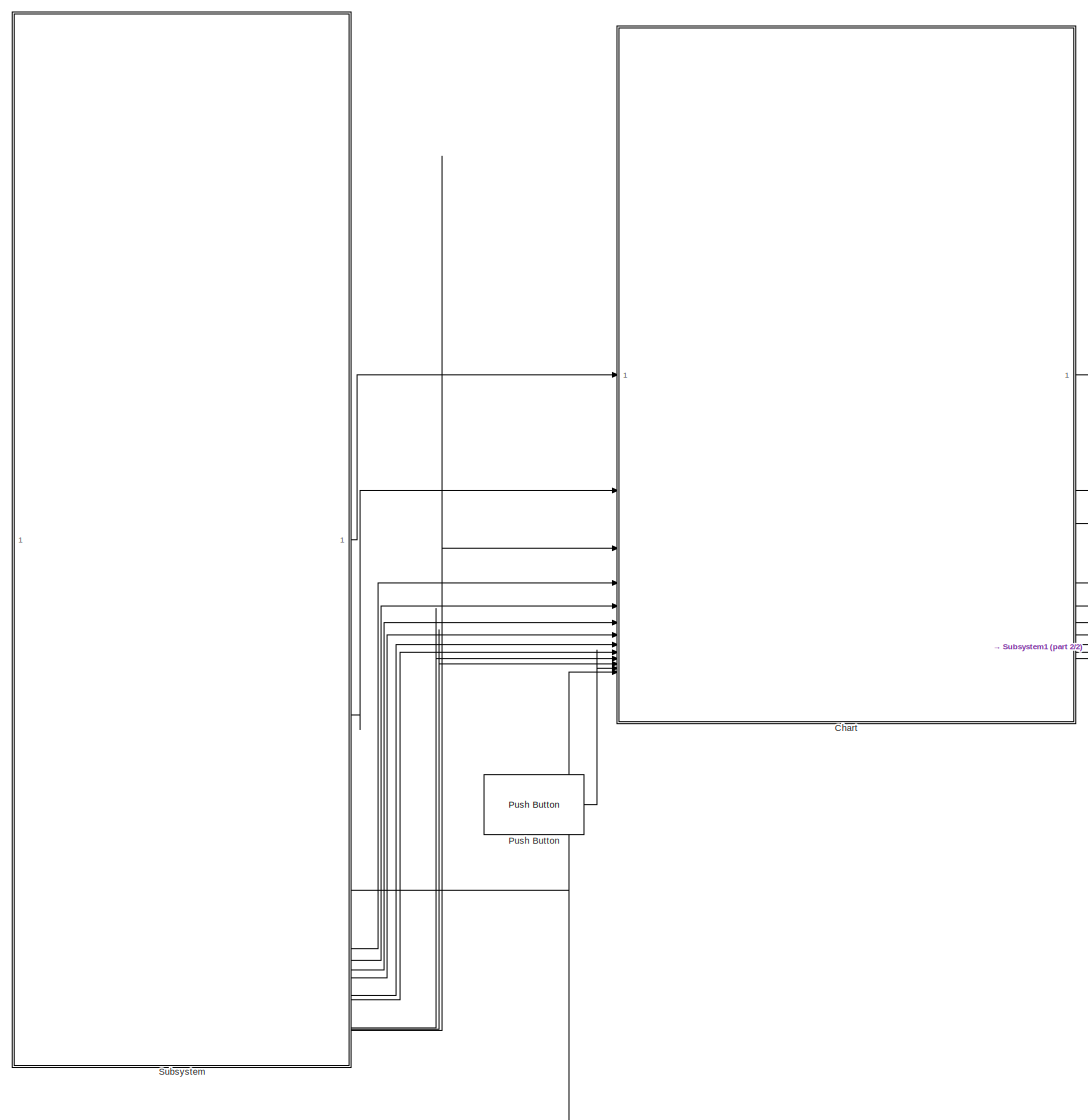
[diagram: root canvas - part 1/2, center side, full height]
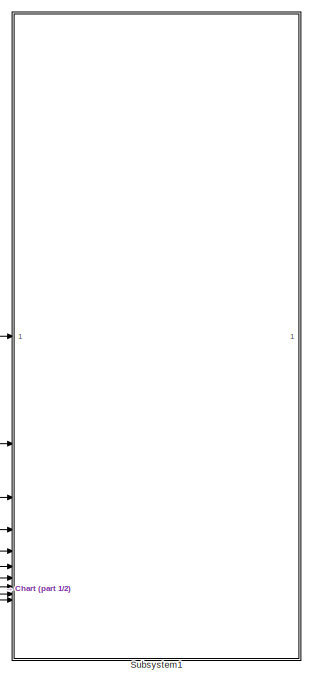
[diagram: root canvas - part 2/2, top right region]
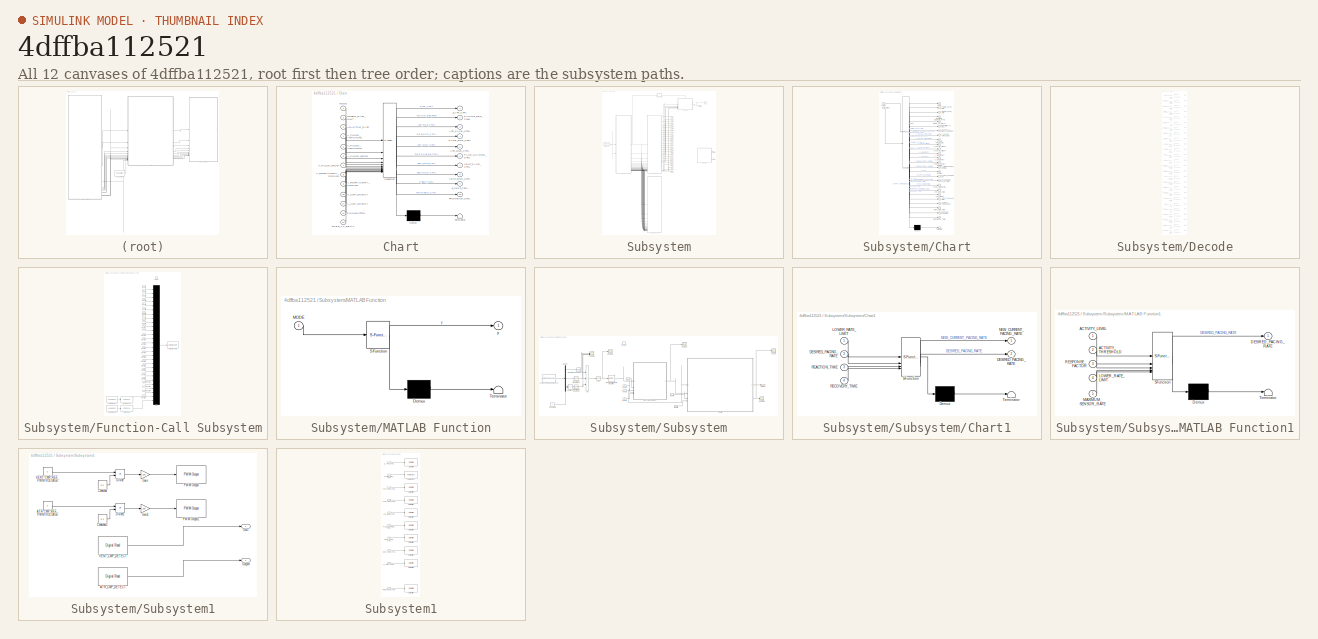
[diagram: thumbnail index - all 12 canvases of the model, root first then tree order]
MODEL slx_4dffba112521
KIND model
CONFIG AbsTol = auto
CONFIG EnableMultiTasking = on
CONFIG FixedStep = 1e-3
CONFIG MaxStep = auto
CONFIG MinStep = auto
CONFIG RelTol = 1e-3
CONFIG SampleTimeConstraint = Unconstrained
CONFIG SolverName = FixedStepAuto
CONFIG StartTime = 0.0
CONFIG StopTime = 10.0
BLOCK [SubSystem] Chart
  ErrorFcn = Stateflow.Translate.translate
  PermitHierarchicalResolution = ExplicitOnly
  SFBlockType = Chart
  TreatAsAtomicUnit = on
BLOCK [Demux] Chart/ Demux 
  Outputs = 1
BLOCK [S-Function] Chart/ SFunction 
  EnableBusSupport = off
  FunctionName = sf_sfun
  PortCounts = [13 11]
  SFcnIsStateOwnerBlock = off
  SFunctionDeploymentMode = off
  Tag = Stateflow S-Function 3
BLOCK [Terminator] Chart/ Terminator 
BLOCK [Inport] Chart/ADAPTIVE_RATE
  Port = 3
BLOCK [Outport] Chart/ATR_GND_CTRL
  Port = 5
BLOCK [Outport] Chart/ATR_PACE_CTRL
  Port = 3
BLOCK [Inport] Chart/A_CMP_DETECT
  Port = 11
BLOCK [Inport] Chart/A_PULSE_AMPLITUDE
  Port = 4
BLOCK [Inport] Chart/A_PULSE_WIDTH
  Port = 6
BLOCK [Inport] Chart/A_REFRACTORY_PERIOD
  Port = 9
BLOCK [Inport] Chart/FIXED_AV_DELAY
  Port = 13
BLOCK [Outport] Chart/FRONTEND_CTRL
  Port = 10
BLOCK [Inport] Chart/LOWER_RATE_LIMIT
  Port = 2
BLOCK [Inport] Chart/MODE
BLOCK [Outport] Chart/PACE_CHARGE_CTRL
  Port = 6
BLOCK [Outport] Chart/PACE_GND_CTRL
  Port = 4
BLOCK [Outport] Chart/PACING_REF_PWM
  Port = 2
BLOCK [Inport] Chart/PUSHBUTTON
  Port = 12
BLOCK [Outport] Chart/VENT_GND_CTRL
  Port = 8
BLOCK [Outport] Chart/VENT_PACE_CTRL
  Port = 7
BLOCK [Inport] Chart/V_CMP_DETECT
  Port = 10
BLOCK [Inport] Chart/V_PULSE_AMPLITUDE
  Port = 5
BLOCK [Inport] Chart/V_PULSE_WIDTH
  Port = 7
BLOCK [Inport] Chart/V_REFRACTORY_PERIOD
  Port = 8
BLOCK [Outport] Chart/Z_ATR_CTRL
BLOCK [Outport] Chart/Z_VENT_CTRL
  Port = 9
BLOCK [Reference] Push Button  REF=frdmk64flib/Push Button
  SourceBlock = frdmk64flib/Push Button
  SourceType = freedomk64f.PushButton
BLOCK [SubSystem] Subsystem
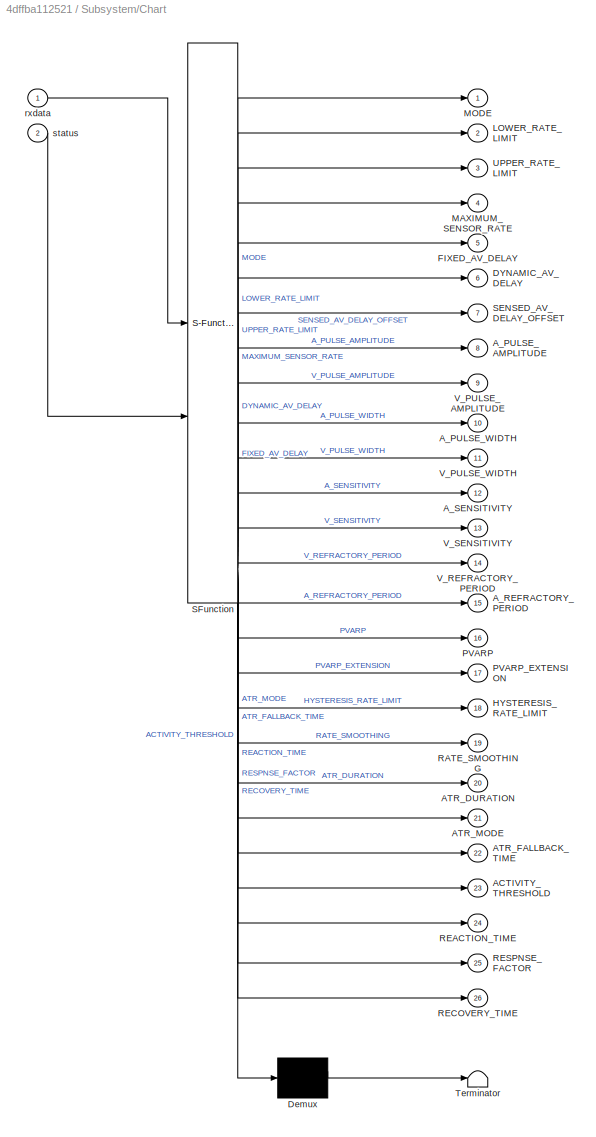
BLOCK [SubSystem] Subsystem/Chart
  ErrorFcn = Stateflow.Translate.translate
  PermitHierarchicalResolution = ExplicitOnly
  SFBlockType = Chart
  TreatAsAtomicUnit = on
BLOCK [Demux] Subsystem/Chart/ Demux 
  Outputs = 1
BLOCK [S-Function] Subsystem/Chart/ SFunction 
  EnableBusSupport = off
  FunctionName = sf_sfun
  PortCounts = [2 27]
  SFcnIsStateOwnerBlock = off
  SFunctionDeploymentMode = off
  Tag = Stateflow S-Function 1
BLOCK [Terminator] Subsystem/Chart/ Terminator 
BLOCK [Outport] Subsystem/Chart/ACTIVITY_THRESHOLD
  Port = 23
BLOCK [Outport] Subsystem/Chart/ATR_DURATION
  Port = 20
BLOCK [Outport] Subsystem/Chart/ATR_FALLBACK_TIME
  Port = 22
BLOCK [Outport] Subsystem/Chart/ATR_MODE
  Port = 21
BLOCK [Outport] Subsystem/Chart/A_PULSE_AMPLITUDE
  Port = 8
BLOCK [Outport] Subsystem/Chart/A_PULSE_WIDTH
  Port = 10
BLOCK [Outport] Subsystem/Chart/A_REFRACTORY_PERIOD
  Port = 15
BLOCK [Outport] Subsystem/Chart/A_SENSITIVITY
  Port = 12
BLOCK [Outport] Subsystem/Chart/DYNAMIC_AV_DELAY
  Port = 6
BLOCK [Outport] Subsystem/Chart/FIXED_AV_DELAY
  Port = 5
BLOCK [Outport] Subsystem/Chart/HYSTERESIS_RATE_LIMIT
  Port = 18
BLOCK [Outport] Subsystem/Chart/LOWER_RATE_LIMIT
  Port = 2
BLOCK [Outport] Subsystem/Chart/MAXIMUM_SENSOR_RATE
  Port = 4
BLOCK [Outport] Subsystem/Chart/MODE
BLOCK [Outport] Subsystem/Chart/PVARP
  Port = 16
BLOCK [Outport] Subsystem/Chart/PVARP_EXTENSION
  Port = 17
BLOCK [Outport] Subsystem/Chart/RATE_SMOOTHING
  Port = 19
BLOCK [Outport] Subsystem/Chart/REACTION_TIME
  Port = 24
BLOCK [Outport] Subsystem/Chart/RECOVERY_TIME
  Port = 26
BLOCK [Outport] Subsystem/Chart/RESPNSE_FACTOR
  Port = 25
BLOCK [Outport] Subsystem/Chart/SENSED_AV_DELAY_OFFSET
  Port = 7
BLOCK [Outport] Subsystem/Chart/UPPER_RATE_LIMIT
  Port = 3
BLOCK [Outport] Subsystem/Chart/V_PULSE_AMPLITUDE
  Port = 9
BLOCK [Outport] Subsystem/Chart/V_PULSE_WIDTH
  Port = 11
BLOCK [Outport] Subsystem/Chart/V_REFRACTORY_PERIOD
  Port = 14
BLOCK [Outport] Subsystem/Chart/V_SENSITIVITY
  Port = 13
BLOCK [Inport] Subsystem/Chart/rxdata
BLOCK [Inport] Subsystem/Chart/status
  Port = 2
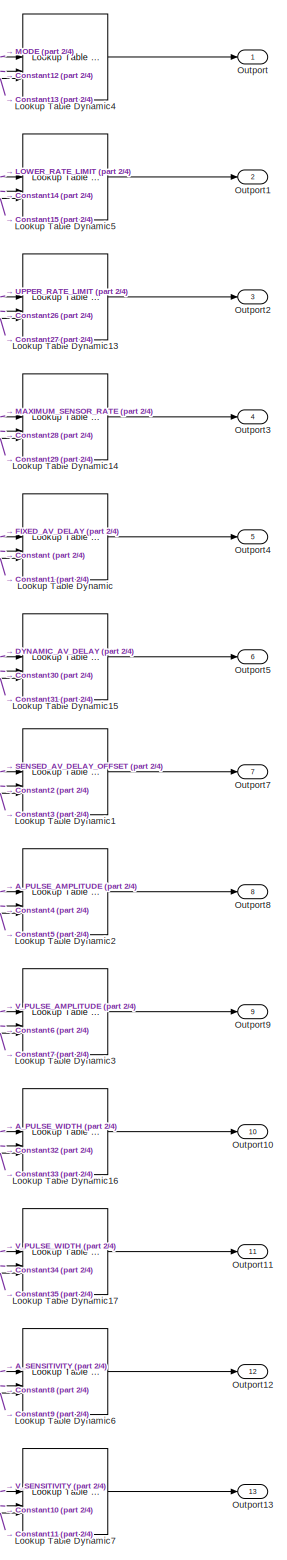
[diagram: Subsystem/Decode - part 1/4, top right region]
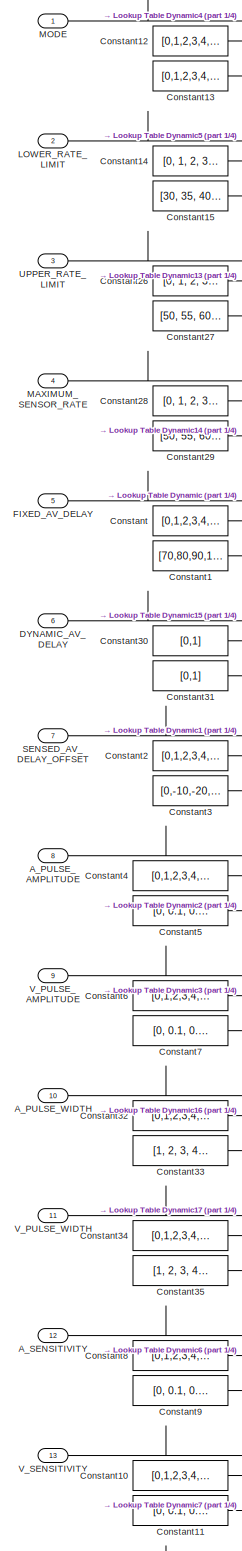
[diagram: Subsystem/Decode - part 2/4, top left region]
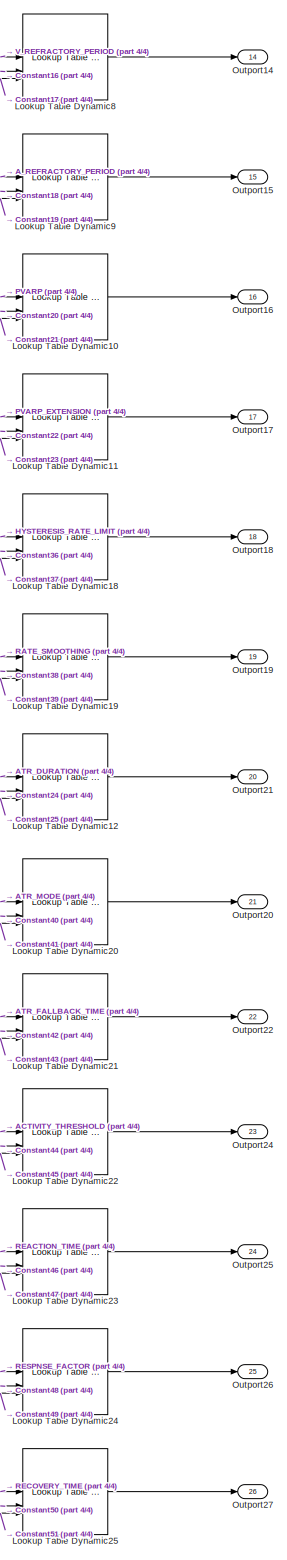
[diagram: Subsystem/Decode - part 3/4, bottom right region]
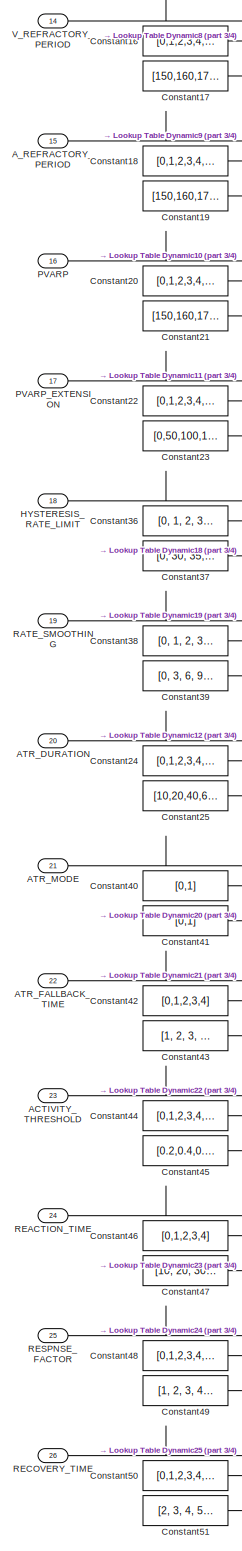
[diagram: Subsystem/Decode - part 4/4, bottom left region]
BLOCK [SubSystem] Subsystem/Decode
BLOCK [Inport] Subsystem/Decode/ACTIVITY_THRESHOLD
  Port = 23
BLOCK [Inport] Subsystem/Decode/ATR_DURATION
  Port = 20
BLOCK [Inport] Subsystem/Decode/ATR_FALLBACK_TIME
  Port = 22
BLOCK [Inport] Subsystem/Decode/ATR_MODE
  Port = 21
BLOCK [Inport] Subsystem/Decode/A_PULSE_AMPLITUDE
  Port = 8
BLOCK [Inport] Subsystem/Decode/A_PULSE_WIDTH
  Port = 10
BLOCK [Inport] Subsystem/Decode/A_REFRACTORY_PERIOD
  Port = 15
BLOCK [Inport] Subsystem/Decode/A_SENSITIVITY
  Port = 12
BLOCK [Constant] Subsystem/Decode/Constant
  Value = [0,1,2,3,4,5,6,7,8,9,10,11,12,13,14,15,16,17,18,19,20,21,22,23]
BLOCK [Constant] Subsystem/Decode/Constant1
  Value = [70,80,90,100,110,120,130,140,150,160,170,180,190,200,210,220,230,240,250,260,270,280,290,300]
BLOCK [Constant] Subsystem/Decode/Constant10
  Value = [0,1,2,3,4,5,6,7,8,9,10,11,12,13,14,15,16,17,18,19,20,21,22,23,24,25,26,27,28,29,30,31,32,33,34,35,36,37,38,39,40,41,42,43,44,45,46,47,48,49,50]
BLOCK [Constant] Subsystem/Decode/Constant11
  Value = [0, 0.1, 0.2, 0.3, 0.4, 0.5, 0.6, 0.7, 0.8, 0.9, 1.0, 1.1, 1.2, 1.3, 1.4, 1.5, 1.6, 1.7, 1.8, 1.9, 2.0, 2.1, 2.2, 2.3, 2.4, 2.5, 2.6, 2.7, 2.8, 2.9, 3.0, 3.1, 3.2, 3.3, 3.4, 3.5, 3.6, 3.7, 3.8, 3.9, 4.0, 4.1, 4.2, 4.3, 4.4, 4.5, 4.6, 4.7, 4.8, 4.9, 5.0]  <repeated x4 — deduplicated; at blocks: Constant11, Constant5, Constant7, Constant9>
BLOCK [Constant] Subsystem/Decode/Constant12
  Value = [0,1,2,3,4,5,6,7,8,9]
BLOCK [Constant] Subsystem/Decode/Constant13
  Value = [0,1,2,3,4,5,6,7,8,9]
BLOCK [Constant] Subsystem/Decode/Constant14
  Value = [0, 1, 2, 3, 4, 5, 6, 7, 8, 9, 10, 11, 12, 13, 14, 15, 16, 17, 18, 19, 20, 21, 22, 23, 24, 25, 26, 27, 28, 29, 30, 31, 32, 33, 34, 35, 36, 37, 38, 39, 40, 41, 42, 43, 44, 45, 46, 47, 48, 49, 50, 51, 52, 53, 54, 55, 56, 57, 58, 59, 60, 61]
BLOCK [Constant] Subsystem/Decode/Constant15
  Value = [30, 35, 40, 45, 50, 51, 52, 53, 54, 55, 56, 57, 58, 59, 60, 61, 62, 63, 64, 65, 66, 67, 68, 69, 70, 71, 72, 73, 74, 75, 76, 77, 78, 79, 80, 81, 82, 83, 84, 85, 86, 87, 88, 89, 90, 95, 100, 105, 110, 115, 120, 125, 130, 135, 140, 145, 150, 155, 160, 165, 170, 175]
BLOCK [Constant] Subsystem/Decode/Constant16
  Value = [0,1,2,3,4,5,6,7,8,9,10,11,12,13,14,15,16,17,18,19,20,21,22,23,24,25,26,27,28,29,30,31,32,33,34,35]
BLOCK [Constant] Subsystem/Decode/Constant17
  Value = [150,160,170,180,190,200,210,220,230,240,250,260,270,280,290,300,310,320,330,340,350,360,370,380,390,400,410,420,430,440,450,460,470,480,490,500]
BLOCK [Constant] Subsystem/Decode/Constant18
  Value = [0,1,2,3,4,5,6,7,8,9,10,11,12,13,14,15,16,17,18,19,20,21,22,23,24,25,26,27,28,29,30,31,32,33,34,35]
BLOCK [Constant] Subsystem/Decode/Constant19
  Value = [150,160,170,180,190,200,210,220,230,240,250,260,270,280,290,300,310,320,330,340,350,360,370,380,390,400,410,420,430,440,450,460,470,480,490,500]
BLOCK [Constant] Subsystem/Decode/Constant2
  Value = [0,1,2,3,4,5,6,7,8,9,10]
BLOCK [Constant] Subsystem/Decode/Constant20
  Value = [0,1,2,3,4,5,6,7,8,9,10,11,12,13,14,15,16,17,18,19,20,21,22,23,24,25,26,27,28,29,30,31,32,33,34,35]
BLOCK [Constant] Subsystem/Decode/Constant21
  Value = [150,160,170,180,190,200,210,220,230,240,250,260,270,280,290,300,310,320,330,340,350,360,370,380,390,400,410,420,430,440,450,460,470,480,490,500]
BLOCK [Constant] Subsystem/Decode/Constant22
  Value = [0,1,2,3,4,5,6,7,8]
BLOCK [Constant] Subsystem/Decode/Constant23
  Value = [0,50,100,150,200,250,300,350,400]
BLOCK [Constant] Subsystem/Decode/Constant24
  Value = [0,1,2,3,4,5,6,7,8,9,10,11,12,13,14,15,16,17,18,19,20,21,22,23,24]
BLOCK [Constant] Subsystem/Decode/Constant25
  Value = [10,20,40,60,80,100,200,300,400,500,600,700,800,900,1000,1100,1200,1300,1400,1500,1600,1700,1800,1900,2000]
BLOCK [Constant] Subsystem/Decode/Constant26
  Value = [0, 1, 2, 3, 4, 5, 6, 7, 8, 9, 10, 11, 12, 13, 14, 15, 16, 17, 18, 19, 20, 21, 22, 23, 24, 25]
BLOCK [Constant] Subsystem/Decode/Constant27
  Value = [50, 55, 60, 65, 70, 75, 80, 85, 90, 95, 100, 105, 110, 115, 120, 125, 130, 135, 140, 145, 150, 155, 160, 165, 170, 175]
BLOCK [Constant] Subsystem/Decode/Constant28
  Value = [0, 1, 2, 3, 4, 5, 6, 7, 8, 9, 10, 11, 12, 13, 14, 15, 16, 17, 18, 19, 20, 21, 22, 23, 24, 25]
BLOCK [Constant] Subsystem/Decode/Constant29
  Value = [50, 55, 60, 65, 70, 75, 80, 85, 90, 95, 100, 105, 110, 115, 120, 125, 130, 135, 140, 145, 150, 155, 160, 165, 170, 175]
BLOCK [Constant] Subsystem/Decode/Constant3
  Value = [0,-10,-20,-30,-40,-50,-60,-70,-80,-90,-100]
BLOCK [Constant] Subsystem/Decode/Constant30
  Value = [0,1]
BLOCK [Constant] Subsystem/Decode/Constant31
  Value = [0,1]
BLOCK [Constant] Subsystem/Decode/Constant32
  Value = [0,1,2,3,4,5,6,7,8,9,10,11,12,13,14,15,16,17,18,19,20,21,22,23,24,25,26,27,28,29]
BLOCK [Constant] Subsystem/Decode/Constant33
  Value = [1, 2, 3, 4, 5, 6, 7, 8, 9, 10, 11, 12, 13, 14, 15, 16, 17, 18, 19, 20, 21, 22, 23, 24, 25, 26, 27, 28, 29, 30]
BLOCK [Constant] Subsystem/Decode/Constant34
  Value = [0,1,2,3,4,5,6,7,8,9,10,11,12,13,14,15,16,17,18,19,20,21,22,23,24,25,26,27,28,29]
BLOCK [Constant] Subsystem/Decode/Constant35
  Value = [1, 2, 3, 4, 5, 6, 7, 8, 9, 10, 11, 12, 13, 14, 15, 16, 17, 18, 19, 20, 21, 22, 23, 24, 25, 26, 27, 28, 29, 30]
BLOCK [Constant] Subsystem/Decode/Constant36
  Value = [0, 1, 2, 3, 4, 5, 6, 7, 8, 9, 10, 11, 12, 13, 14, 15, 16, 17, 18, 19, 20, 21, 22, 23, 24, 25, 26, 27, 28, 29, 30, 31, 32, 33, 34, 35, 36, 37, 38, 39, 40, 41, 42, 43, 44, 45, 46, 47, 48, 49, 50, 51, 52, 53, 54, 55, 56, 57, 58, 59, 60, 61,62]
BLOCK [Constant] Subsystem/Decode/Constant37
  Value = [0, 30, 35, 40, 45, 50, 51, 52, 53, 54, 55, 56, 57, 58, 59, 60, 61, 62, 63, 64, 65, 66, 67, 68, 69, 70, 71, 72, 73, 74, 75, 76, 77, 78, 79, 80, 81, 82, 83, 84, 85, 86, 87, 88, 89, 90, 95, 100, 105, 110, 115, 120, 125, 130, 135, 140, 145, 150, 155, 160, 165, 170, 175]
BLOCK [Constant] Subsystem/Decode/Constant38
  Value = [0, 1, 2, 3, 4, 5, 6, 7, 8]
BLOCK [Constant] Subsystem/Decode/Constant39
  Value = [0, 3, 6, 9, 12, 15, 18, 21, 25]
BLOCK [Constant] Subsystem/Decode/Constant4
  Value = [0,1,2,3,4,5,6,7,8,9,10,11,12,13,14,15,16,17,18,19,20,21,22,23,24,25,26,27,28,29,30,31,32,33,34,35,36,37,38,39,40,41,42,43,44,45,46,47,48,49,50]
BLOCK [Constant] Subsystem/Decode/Constant40
  Value = [0,1]
BLOCK [Constant] Subsystem/Decode/Constant41
  Value = [0,1]
BLOCK [Constant] Subsystem/Decode/Constant42
  Value = [0,1,2,3,4]
BLOCK [Constant] Subsystem/Decode/Constant43
  Value = [1, 2, 3, 4, 5]
BLOCK [Constant] Subsystem/Decode/Constant44
  Value = [0,1,2,3,4,5,6]
BLOCK [Constant] Subsystem/Decode/Constant45
  Value = [0.2,0.4,0.6,0.8,1.0,1.2,1.4]
BLOCK [Constant] Subsystem/Decode/Constant46
  Value = [0,1,2,3,4]
BLOCK [Constant] Subsystem/Decode/Constant47
  Value = [10, 20, 30, 40, 50]
BLOCK [Constant] Subsystem/Decode/Constant48
  Value = [0,1,2,3,4,5,6,7,8,9,10,11,12,13,14,15]
BLOCK [Constant] Subsystem/Decode/Constant49
  Value = [1, 2, 3, 4, 5, 6, 7, 8, 9, 10, 11, 12, 13, 14, 15, 16]
BLOCK [Constant] Subsystem/Decode/Constant5
BLOCK [Constant] Subsystem/Decode/Constant50
  Value = [0,1,2,3,4,5,6,7,8,9,10,11,12,13,14]
BLOCK [Constant] Subsystem/Decode/Constant51
  Value = [2, 3, 4, 5, 6, 7, 8, 9, 10, 11, 12, 13, 14, 15, 16]
BLOCK [Constant] Subsystem/Decode/Constant6
  Value = [0,1,2,3,4,5,6,7,8,9,10,11,12,13,14,15,16,17,18,19,20,21,22,23,24,25,26,27,28,29,30,31,32,33,34,35,36,37,38,39,40,41,42,43,44,45,46,47,48,49,50]
BLOCK [Constant] Subsystem/Decode/Constant7
BLOCK [Constant] Subsystem/Decode/Constant8
  Value = [0,1,2,3,4,5,6,7,8,9,10,11,12,13,14,15,16,17,18,19,20,21,22,23,24,25,26,27,28,29,30,31,32,33,34,35,36,37,38,39,40,41,42,43,44,45,46,47,48,49,50]
BLOCK [Constant] Subsystem/Decode/Constant9
BLOCK [Inport] Subsystem/Decode/DYNAMIC_AV_DELAY
  Port = 6
BLOCK [Inport] Subsystem/Decode/FIXED_AV_DELAY
  Port = 5
BLOCK [Inport] Subsystem/Decode/HYSTERESIS_RATE_LIMIT
  Port = 18
BLOCK [Inport] Subsystem/Decode/LOWER_RATE_LIMIT
  Port = 2
BLOCK [Reference] Subsystem/Decode/Lookup Table Dynamic  REF=simulink/Lookup
Tables/Lookup
Table
Dynamic
  SourceBlock = simulink/Lookup\nTables/Lookup\nTable\nDynamic
  SourceType = Lookup Table Dynamic
BLOCK [Reference] Subsystem/Decode/Lookup Table Dynamic1  REF=simulink/Lookup
Tables/Lookup
Table
Dynamic
  SourceBlock = simulink/Lookup\nTables/Lookup\nTable\nDynamic
  SourceType = Lookup Table Dynamic
BLOCK [Reference] Subsystem/Decode/Lookup Table Dynamic10  REF=simulink/Lookup
Tables/Lookup
Table
Dynamic
  SourceBlock = simulink/Lookup\nTables/Lookup\nTable\nDynamic
  SourceType = Lookup Table Dynamic
BLOCK [Reference] Subsystem/Decode/Lookup Table Dynamic11  REF=simulink/Lookup
Tables/Lookup
Table
Dynamic
  SourceBlock = simulink/Lookup\nTables/Lookup\nTable\nDynamic
  SourceType = Lookup Table Dynamic
BLOCK [Reference] Subsystem/Decode/Lookup Table Dynamic12  REF=simulink/Lookup
Tables/Lookup
Table
Dynamic
  SourceBlock = simulink/Lookup\nTables/Lookup\nTable\nDynamic
  SourceType = Lookup Table Dynamic
BLOCK [Reference] Subsystem/Decode/Lookup Table Dynamic13  REF=simulink/Lookup
Tables/Lookup
Table
Dynamic
  SourceBlock = simulink/Lookup\nTables/Lookup\nTable\nDynamic
  SourceType = Lookup Table Dynamic
BLOCK [Reference] Subsystem/Decode/Lookup Table Dynamic14  REF=simulink/Lookup
Tables/Lookup
Table
Dynamic
  SourceBlock = simulink/Lookup\nTables/Lookup\nTable\nDynamic
  SourceType = Lookup Table Dynamic
BLOCK [Reference] Subsystem/Decode/Lookup Table Dynamic15  REF=simulink/Lookup
Tables/Lookup
Table
Dynamic
  SourceBlock = simulink/Lookup\nTables/Lookup\nTable\nDynamic
  SourceType = Lookup Table Dynamic
BLOCK [Reference] Subsystem/Decode/Lookup Table Dynamic16  REF=simulink/Lookup
Tables/Lookup
Table
Dynamic
  SourceBlock = simulink/Lookup\nTables/Lookup\nTable\nDynamic
  SourceType = Lookup Table Dynamic
BLOCK [Reference] Subsystem/Decode/Lookup Table Dynamic17  REF=simulink/Lookup
Tables/Lookup
Table
Dynamic
  SourceBlock = simulink/Lookup\nTables/Lookup\nTable\nDynamic
  SourceType = Lookup Table Dynamic
BLOCK [Reference] Subsystem/Decode/Lookup Table Dynamic18  REF=simulink/Lookup
Tables/Lookup
Table
Dynamic
  SourceBlock = simulink/Lookup\nTables/Lookup\nTable\nDynamic
  SourceType = Lookup Table Dynamic
BLOCK [Reference] Subsystem/Decode/Lookup Table Dynamic19  REF=simulink/Lookup
Tables/Lookup
Table
Dynamic
  SourceBlock = simulink/Lookup\nTables/Lookup\nTable\nDynamic
  SourceType = Lookup Table Dynamic
BLOCK [Reference] Subsystem/Decode/Lookup Table Dynamic2  REF=simulink/Lookup
Tables/Lookup
Table
Dynamic
  SourceBlock = simulink/Lookup\nTables/Lookup\nTable\nDynamic
  SourceType = Lookup Table Dynamic
BLOCK [Reference] Subsystem/Decode/Lookup Table Dynamic20  REF=simulink/Lookup
Tables/Lookup
Table
Dynamic
  SourceBlock = simulink/Lookup\nTables/Lookup\nTable\nDynamic
  SourceType = Lookup Table Dynamic
BLOCK [Reference] Subsystem/Decode/Lookup Table Dynamic21  REF=simulink/Lookup
Tables/Lookup
Table
Dynamic
  SourceBlock = simulink/Lookup\nTables/Lookup\nTable\nDynamic
  SourceType = Lookup Table Dynamic
BLOCK [Reference] Subsystem/Decode/Lookup Table Dynamic22  REF=simulink/Lookup
Tables/Lookup
Table
Dynamic
  SourceBlock = simulink/Lookup\nTables/Lookup\nTable\nDynamic
  SourceType = Lookup Table Dynamic
BLOCK [Reference] Subsystem/Decode/Lookup Table Dynamic23  REF=simulink/Lookup
Tables/Lookup
Table
Dynamic
  SourceBlock = simulink/Lookup\nTables/Lookup\nTable\nDynamic
  SourceType = Lookup Table Dynamic
BLOCK [Reference] Subsystem/Decode/Lookup Table Dynamic24  REF=simulink/Lookup
Tables/Lookup
Table
Dynamic
  SourceBlock = simulink/Lookup\nTables/Lookup\nTable\nDynamic
  SourceType = Lookup Table Dynamic
BLOCK [Reference] Subsystem/Decode/Lookup Table Dynamic25  REF=simulink/Lookup
Tables/Lookup
Table
Dynamic
  SourceBlock = simulink/Lookup\nTables/Lookup\nTable\nDynamic
  SourceType = Lookup Table Dynamic
BLOCK [Reference] Subsystem/Decode/Lookup Table Dynamic3  REF=simulink/Lookup
Tables/Lookup
Table
Dynamic
  SourceBlock = simulink/Lookup\nTables/Lookup\nTable\nDynamic
  SourceType = Lookup Table Dynamic
BLOCK [Reference] Subsystem/Decode/Lookup Table Dynamic4  REF=simulink/Lookup
Tables/Lookup
Table
Dynamic
  SourceBlock = simulink/Lookup\nTables/Lookup\nTable\nDynamic
  SourceType = Lookup Table Dynamic
BLOCK [Reference] Subsystem/Decode/Lookup Table Dynamic5  REF=simulink/Lookup
Tables/Lookup
Table
Dynamic
  SourceBlock = simulink/Lookup\nTables/Lookup\nTable\nDynamic
  SourceType = Lookup Table Dynamic
BLOCK [Reference] Subsystem/Decode/Lookup Table Dynamic6  REF=simulink/Lookup
Tables/Lookup
Table
Dynamic
  SourceBlock = simulink/Lookup\nTables/Lookup\nTable\nDynamic
  SourceType = Lookup Table Dynamic
BLOCK [Reference] Subsystem/Decode/Lookup Table Dynamic7  REF=simulink/Lookup
Tables/Lookup
Table
Dynamic
  SourceBlock = simulink/Lookup\nTables/Lookup\nTable\nDynamic
  SourceType = Lookup Table Dynamic
BLOCK [Reference] Subsystem/Decode/Lookup Table Dynamic8  REF=simulink/Lookup
Tables/Lookup
Table
Dynamic
  SourceBlock = simulink/Lookup\nTables/Lookup\nTable\nDynamic
  SourceType = Lookup Table Dynamic
BLOCK [Reference] Subsystem/Decode/Lookup Table Dynamic9  REF=simulink/Lookup
Tables/Lookup
Table
Dynamic
  SourceBlock = simulink/Lookup\nTables/Lookup\nTable\nDynamic
  SourceType = Lookup Table Dynamic
BLOCK [Inport] Subsystem/Decode/MAXIMUM_SENSOR_RATE
  Port = 4
BLOCK [Inport] Subsystem/Decode/MODE
BLOCK [Outport] Subsystem/Decode/Outport
BLOCK [Outport] Subsystem/Decode/Outport1
  Port = 2
BLOCK [Outport] Subsystem/Decode/Outport10
  Port = 10
BLOCK [Outport] Subsystem/Decode/Outport11
  Port = 11
BLOCK [Outport] Subsystem/Decode/Outport12
  Port = 12
BLOCK [Outport] Subsystem/Decode/Outport13
  Port = 13
BLOCK [Outport] Subsystem/Decode/Outport14
  Port = 14
BLOCK [Outport] Subsystem/Decode/Outport15
  Port = 15
BLOCK [Outport] Subsystem/Decode/Outport16
  Port = 16
BLOCK [Outport] Subsystem/Decode/Outport17
  Port = 17
BLOCK [Outport] Subsystem/Decode/Outport18
  Port = 18
BLOCK [Outport] Subsystem/Decode/Outport19
  Port = 19
BLOCK [Outport] Subsystem/Decode/Outport2
  Port = 3
BLOCK [Outport] Subsystem/Decode/Outport20
  Port = 21
BLOCK [Outport] Subsystem/Decode/Outport21
  Port = 20
BLOCK [Outport] Subsystem/Decode/Outport22
  Port = 22
BLOCK [Outport] Subsystem/Decode/Outport24
  Port = 23
BLOCK [Outport] Subsystem/Decode/Outport25
  Port = 24
BLOCK [Outport] Subsystem/Decode/Outport26
  Port = 25
BLOCK [Outport] Subsystem/Decode/Outport27
  Port = 26
BLOCK [Outport] Subsystem/Decode/Outport3
  Port = 4
BLOCK [Outport] Subsystem/Decode/Outport4
  Port = 5
BLOCK [Outport] Subsystem/Decode/Outport5
  Port = 6
BLOCK [Outport] Subsystem/Decode/Outport7
  Port = 7
BLOCK [Outport] Subsystem/Decode/Outport8
  Port = 8
BLOCK [Outport] Subsystem/Decode/Outport9
  Port = 9
BLOCK [Inport] Subsystem/Decode/PVARP
  Port = 16
BLOCK [Inport] Subsystem/Decode/PVARP_EXTENSION
  Port = 17
BLOCK [Inport] Subsystem/Decode/RATE_SMOOTHING
  Port = 19
BLOCK [Inport] Subsystem/Decode/REACTION_TIME
  Port = 24
BLOCK [Inport] Subsystem/Decode/RECOVERY_TIME
  Port = 26
BLOCK [Inport] Subsystem/Decode/RESPNSE_FACTOR
  Port = 25
BLOCK [Inport] Subsystem/Decode/SENSED_AV_DELAY_OFFSET
  Port = 7
BLOCK [Inport] Subsystem/Decode/UPPER_RATE_LIMIT
  Port = 3
BLOCK [Inport] Subsystem/Decode/V_PULSE_AMPLITUDE
  Port = 9
BLOCK [Inport] Subsystem/Decode/V_PULSE_WIDTH
  Port = 11
BLOCK [Inport] Subsystem/Decode/V_REFRACTORY_PERIOD
  Port = 14
BLOCK [Inport] Subsystem/Decode/V_SENSITIVITY
  Port = 13
BLOCK [SubSystem] Subsystem/Function-Call Subsystem
  TreatAsAtomicUnit = on
BLOCK [Reference] Subsystem/Function-Call Subsystem/Analog Input  REF=frdmk64flib/Analog Input
  SourceBlock = frdmk64flib/Analog Input
  SourceType = freedomk64f.AnalogInput
BLOCK [Reference] Subsystem/Function-Call Subsystem/Analog Input1  REF=frdmk64flib/Analog Input
  SourceBlock = frdmk64flib/Analog Input
  SourceType = freedomk64f.AnalogInput
BLOCK [Reference] Subsystem/Function-Call Subsystem/Byte Pack  REF=etargetslib/Byte Pack
  SourceBlock = etargetslib/Byte Pack
  SourceType = Byte pack
BLOCK [Reference] Subsystem/Function-Call Subsystem/Byte Pack1  REF=etargetslib/Byte Pack
  SourceBlock = etargetslib/Byte Pack
  SourceType = Byte pack
BLOCK [Inport] Subsystem/Function-Call Subsystem/Inport
BLOCK [Inport] Subsystem/Function-Call Subsystem/Inport1
  Port = 2
BLOCK [Inport] Subsystem/Function-Call Subsystem/Inport10
  Port = 11
BLOCK [Inport] Subsystem/Function-Call Subsystem/Inport11
  Port = 12
BLOCK [Inport] Subsystem/Function-Call Subsystem/Inport12
  Port = 13
BLOCK [Inport] Subsystem/Function-Call Subsystem/Inport13
  Port = 14
BLOCK [Inport] Subsystem/Function-Call Subsystem/Inport14
  Port = 15
BLOCK [Inport] Subsystem/Function-Call Subsystem/Inport15
  Port = 16
BLOCK [Inport] Subsystem/Function-Call Subsystem/Inport16
  Port = 17
BLOCK [Inport] Subsystem/Function-Call Subsystem/Inport17
  Port = 18
BLOCK [Inport] Subsystem/Function-Call Subsystem/Inport18
  Port = 19
BLOCK [Inport] Subsystem/Function-Call Subsystem/Inport19
  Port = 20
BLOCK [Inport] Subsystem/Function-Call Subsystem/Inport2
  Port = 3
BLOCK [Inport] Subsystem/Function-Call Subsystem/Inport20
  Port = 21
BLOCK [Inport] Subsystem/Function-Call Subsystem/Inport21
  Port = 22
BLOCK [Inport] Subsystem/Function-Call Subsystem/Inport22
  Port = 23
BLOCK [Inport] Subsystem/Function-Call Subsystem/Inport23
  Port = 24
BLOCK [Inport] Subsystem/Function-Call Subsystem/Inport24
  Port = 25
BLOCK [Inport] Subsystem/Function-Call Subsystem/Inport25
  Port = 26
BLOCK [Inport] Subsystem/Function-Call Subsystem/Inport3
  Port = 4
BLOCK [Inport] Subsystem/Function-Call Subsystem/Inport4
  Port = 5
BLOCK [Inport] Subsystem/Function-Call Subsystem/Inport5
  Port = 6
BLOCK [Inport] Subsystem/Function-Call Subsystem/Inport6
  Port = 7
BLOCK [Inport] Subsystem/Function-Call Subsystem/Inport7
  Port = 8
BLOCK [Inport] Subsystem/Function-Call Subsystem/Inport8
  Port = 9
BLOCK [Inport] Subsystem/Function-Call Subsystem/Inport9
  Port = 10
BLOCK [Mux] Subsystem/Function-Call Subsystem/Mux
  DisplayOption = bar
  Inputs = 28
BLOCK [TriggerPort] Subsystem/Function-Call Subsystem/SEND
  FunctionName = SEND
  IsSimulinkFunction = on
  StatesWhenEnabling = held
  TriggerType = function-call
  VariantControl = (inherit)
BLOCK [Reference] Subsystem/Function-Call Subsystem/Serial Transmit  REF=frdmk64flib/Serial Transmit
  SourceBlock = frdmk64flib/Serial Transmit
  SourceType = freedomk64f.SCIWrite
BLOCK [SubSystem] Subsystem/MATLAB Function
  ErrorFcn = Stateflow.Translate.translate
  LibrarySourceBlock = simulink/User-Defined\nFunctions/MATLAB Function
  PermitHierarchicalResolution = ExplicitOnly
  SFBlockType = MATLAB Function
  TreatAsAtomicUnit = on
BLOCK [Demux] Subsystem/MATLAB Function/ Demux 
  Outputs = 1
BLOCK [S-Function] Subsystem/MATLAB Function/ SFunction 
  EnableBusSupport = off
  FunctionName = sf_sfun
  PortCounts = [1 2]
  SFcnIsStateOwnerBlock = off
  SFunctionDeploymentMode = off
  Tag = Stateflow S-Function 5
BLOCK [Terminator] Subsystem/MATLAB Function/ Terminator 
BLOCK [Inport] Subsystem/MATLAB Function/MODE
BLOCK [Outport] Subsystem/MATLAB Function/y
BLOCK [Outport] Subsystem/Outport
BLOCK [Outport] Subsystem/Outport1
  Port = 2
BLOCK [Outport] Subsystem/Outport10
  Port = 11
BLOCK [Outport] Subsystem/Outport11
  Port = 12
BLOCK [Outport] Subsystem/Outport12
  Port = 13
BLOCK [Outport] Subsystem/Outport13
  Port = 14
BLOCK [Outport] Subsystem/Outport14
  Port = 15
BLOCK [Outport] Subsystem/Outport15
  Port = 16
BLOCK [Outport] Subsystem/Outport16
  Port = 17
BLOCK [Outport] Subsystem/Outport17
  Port = 18
BLOCK [Outport] Subsystem/Outport18
  Port = 19
BLOCK [Outport] Subsystem/Outport19
  Port = 20
BLOCK [Outport] Subsystem/Outport2
  Port = 3
BLOCK [Outport] Subsystem/Outport20
  Port = 21
BLOCK [Outport] Subsystem/Outport21
  Port = 22
BLOCK [Outport] Subsystem/Outport22
  Port = 23
BLOCK [Outport] Subsystem/Outport23
  Port = 24
BLOCK [Outport] Subsystem/Outport24
  Port = 25
BLOCK [Outport] Subsystem/Outport25
  Port = 26
BLOCK [Outport] Subsystem/Outport26
  Port = 27
BLOCK [Outport] Subsystem/Outport27
  Port = 28
BLOCK [Outport] Subsystem/Outport28
  Port = 29
BLOCK [Outport] Subsystem/Outport3
  Port = 4
BLOCK [Outport] Subsystem/Outport4
  Port = 5
BLOCK [Outport] Subsystem/Outport5
  Port = 6
BLOCK [Outport] Subsystem/Outport6
  Port = 7
BLOCK [Outport] Subsystem/Outport7
  Port = 8
BLOCK [Outport] Subsystem/Outport8
  Port = 9
BLOCK [Outport] Subsystem/Outport9
  Port = 10
BLOCK [Scope] Subsystem/Scope
  Floating = off
  NumInputPorts = 1
  ScopeSpecificationString = Simulink.scopes.TimeScopeBlockCfg
BLOCK [Reference] Subsystem/Serial Receive  REF=frdmk64flib/Serial Receive
  SourceBlock = frdmk64flib/Serial Receive
  SourceType = freedomk64f.SCIRead
BLOCK [SubSystem] Subsystem/Subsystem
BLOCK [Sum] Subsystem/Subsystem/Add
  IconShape = rectangular
  Inputs = +++
BLOCK [SubSystem] Subsystem/Subsystem/Chart1
  ErrorFcn = Stateflow.Translate.translate
  PermitHierarchicalResolution = ExplicitOnly
  SFBlockType = Chart
  TreatAsAtomicUnit = on
BLOCK [Demux] Subsystem/Subsystem/Chart1/ Demux 
  Outputs = 1
BLOCK [S-Function] Subsystem/Subsystem/Chart1/ SFunction 
  EnableBusSupport = off
  FunctionName = sf_sfun
  PortCounts = [4 3]
  SFcnIsStateOwnerBlock = off
  SFunctionDeploymentMode = off
  Tag = Stateflow S-Function 2
BLOCK [Terminator] Subsystem/Subsystem/Chart1/ Terminator 
BLOCK [Outport] Subsystem/Subsystem/Chart1/DESIRED_PACING_RATE
  Port = 2
BLOCK [Inport] Subsystem/Subsystem/Chart1/DESIRED_PACING_RATE 
  Port = 2
BLOCK [Inport] Subsystem/Subsystem/Chart1/LOWER_RATE_LIMIT
BLOCK [Outport] Subsystem/Subsystem/Chart1/NEW_CURRENT_PACING_RATE
BLOCK [Inport] Subsystem/Subsystem/Chart1/REACTION_TIME
  Port = 3
BLOCK [Inport] Subsystem/Subsystem/Chart1/RECOVERY_TIME
  Port = 4
BLOCK [Constant] Subsystem/Subsystem/Constant4
BLOCK [Demux] Subsystem/Subsystem/Demux
  Outputs = 3
BLOCK [EnablePort] Subsystem/Subsystem/Enable
BLOCK [Reference] Subsystem/Subsystem/FXOS8700 6-Axes Sensor  REF=frdmk64flib/FXOS8700 6-Axes Sensor
  SourceBlock = frdmk64flib/FXOS8700 6-Axes Sensor
  SourceType = freedomk64f.fxos8700
BLOCK [Inport] Subsystem/Subsystem/Inport
BLOCK [Inport] Subsystem/Subsystem/Inport1
  Port = 2
BLOCK [Inport] Subsystem/Subsystem/Inport2
  Port = 3
BLOCK [Inport] Subsystem/Subsystem/Inport3
  Port = 4
BLOCK [Inport] Subsystem/Subsystem/Inport4
  Port = 5
BLOCK [Inport] Subsystem/Subsystem/Inport5
  Port = 6
BLOCK [SubSystem] Subsystem/Subsystem/MATLAB Function1
  ErrorFcn = Stateflow.Translate.translate
  LibrarySourceBlock = simulink/User-Defined\nFunctions/MATLAB Function
  PermitHierarchicalResolution = ExplicitOnly
  SFBlockType = MATLAB Function
  TreatAsAtomicUnit = on
BLOCK [Demux] Subsystem/Subsystem/MATLAB Function1/ Demux 
  Outputs = 1
BLOCK [S-Function] Subsystem/Subsystem/MATLAB Function1/ SFunction 
  EnableBusSupport = off
  FunctionName = sf_sfun
  PortCounts = [5 2]
  SFcnIsStateOwnerBlock = off
  SFunctionDeploymentMode = off
  Tag = Stateflow S-Function 4
BLOCK [Terminator] Subsystem/Subsystem/MATLAB Function1/ Terminator 
BLOCK [Inport] Subsystem/Subsystem/MATLAB Function1/ACTIVITY_LEVEL
BLOCK [Inport] Subsystem/Subsystem/MATLAB Function1/ACTIVITY_THRESHOLD
  Port = 2
BLOCK [Outport] Subsystem/Subsystem/MATLAB Function1/DESIRED_PACING_RATE
BLOCK [Inport] Subsystem/Subsystem/MATLAB Function1/LOWER_RATE_LIMIT
  Port = 4
BLOCK [Inport] Subsystem/Subsystem/MATLAB Function1/MAXIMUM_SENSOR_RATE
  Port = 5
BLOCK [Inport] Subsystem/Subsystem/MATLAB Function1/RESPONSE_FACTOR
  Port = 3
BLOCK [Math] Subsystem/Subsystem/Magnitude Squared
  Operator = magnitude^2
BLOCK [Math] Subsystem/Subsystem/Magnitude Squared1
  Operator = magnitude^2
BLOCK [Math] Subsystem/Subsystem/Magnitude Squared2
  Operator = magnitude^2
BLOCK [Reference] Subsystem/Subsystem/Moving Standard Deviation  REF=dspstat3/Moving
Standard
Deviation
  SourceBlock = dspstat3/Moving\nStandard\nDeviation
  SourceType = dsp.simulink.MovingStandardDeviation
BLOCK [Outport] Subsystem/Subsystem/Outport
BLOCK [Scope] Subsystem/Subsystem/Scope
  Floating = off
  NumInputPorts = 1
  ScopeSpecificationString = Simulink.scopes.TimeScopeBlockCfg('CurrentConfiguration', extmgr.ConfigurationSet(extmgr.Configuration('Core','General UI',true),extmgr.Configuration('Core','Source UI',true),extmgr.Configuration('Sources','WiredSimulink',true),extmgr.Configuration('Visuals','Time Domain',true),extmgr.Configuration('Tools','Plot Navigation',true),extmgr.Configuration('Tools','Measurements',true,'Version','2023a'))...<+48ch>
BLOCK [Scope] Subsystem/Subsystem/Scope1
  Floating = off
  NumInputPorts = 1
  ScopeSpecificationString = Simulink.scopes.TimeScopeBlockCfg
BLOCK [Scope] Subsystem/Subsystem/Scope2
  Floating = off
  NumInputPorts = 1
  ScopeSpecificationString = Simulink.scopes.TimeScopeBlockCfg('CurrentConfiguration', extmgr.ConfigurationSet(extmgr.Configuration('Core','General UI',true),extmgr.Configuration('Core','Source UI',true),extmgr.Configuration('Sources','WiredSimulink',true,'DataLoggingVariableName','ScopeData3'),extmgr.Configuration('Visuals','Time Domain',true,'SerializedDisplays',{struct('MinYLimReal','-0.23441','MaxYLimReal','2.91189','YLab...<+1398ch>
BLOCK [Scope] Subsystem/Subsystem/Scope3
  Floating = off
  NumInputPorts = 3
  ScopeSpecificationString = Simulink.scopes.TimeScopeBlockCfg('CurrentConfiguration', extmgr.ConfigurationSet(extmgr.Configuration('Core','General UI',true),extmgr.Configuration('Core','Source UI',true),extmgr.Configuration('Sources','WiredSimulink',true,'DataLoggingVariableName','ScopeData4'),extmgr.Configuration('Visuals','Time Domain',true,'SerializedDisplays',{struct('MinYLimReal','-0.78487','MaxYLimReal','7.06387','YLab...<+1451ch>
BLOCK [Scope] Subsystem/Subsystem/Scope4
  Floating = off
  NumInputPorts = 1
  ScopeSpecificationString = Simulink.scopes.TimeScopeBlockCfg
BLOCK [Sqrt] Subsystem/Subsystem/Sqrt
BLOCK [Sum] Subsystem/Subsystem/Subtract
  IconShape = rectangular
  Inputs = +-
BLOCK [SubSystem] Subsystem/Subsystem1
BLOCK [Reference] Subsystem/Subsystem1/ATR_CMP_DETECT  REF=frdmk64flib/Digital Read
  SourceBlock = frdmk64flib/Digital Read
  SourceType = freedomk64f.DigitalRead
BLOCK [Constant] Subsystem/Subsystem1/ATR_CMP_REF_PWM VOLTAGE
  Value = 2
BLOCK [Constant] Subsystem/Subsystem1/Constant
  Value = 3.3
BLOCK [Constant] Subsystem/Subsystem1/Constant1
  Value = 3.3
BLOCK [Product] Subsystem/Subsystem1/Divide
  Inputs = */
BLOCK [Product] Subsystem/Subsystem1/Divide1
  Inputs = */
BLOCK [Gain] Subsystem/Subsystem1/Gain
  Gain = 100
BLOCK [Gain] Subsystem/Subsystem1/Gain1
  Gain = 100
BLOCK [Outport] Subsystem/Subsystem1/Out1
BLOCK [Outport] Subsystem/Subsystem1/Outport
  Port = 2
BLOCK [Reference] Subsystem/Subsystem1/PWM Output  REF=frdmk64flib/PWM Output
  SourceBlock = frdmk64flib/PWM Output
  SourceType = freedomk64f.PWMOutput
BLOCK [Reference] Subsystem/Subsystem1/PWM Output1  REF=frdmk64flib/PWM Output
  SourceBlock = frdmk64flib/PWM Output
  SourceType = freedomk64f.PWMOutput
BLOCK [Reference] Subsystem/Subsystem1/VENT_CMP_DETECT  REF=frdmk64flib/Digital Read
  SourceBlock = frdmk64flib/Digital Read
  SourceType = freedomk64f.DigitalRead
BLOCK [Constant] Subsystem/Subsystem1/VENT_CMP_REF_PWM VOLTAGE
  Value = 2
BLOCK [SubSystem] Subsystem1
BLOCK [Inport] Subsystem1/ATR_GND_CTRL
  Port = 5
BLOCK [Inport] Subsystem1/ATR_PACE_CTRL
  Port = 3
BLOCK [Reference] Subsystem1/Digital Write  REF=frdmk64flib/Digital Write
  SourceBlock = frdmk64flib/Digital Write
  SourceType = freedomk64f.DigitalWrite
BLOCK [Reference] Subsystem1/Digital Write1  REF=frdmk64flib/Digital Write
  SourceBlock = frdmk64flib/Digital Write
  SourceType = freedomk64f.DigitalWrite
BLOCK [Reference] Subsystem1/Digital Write2  REF=frdmk64flib/Digital Write
  SourceBlock = frdmk64flib/Digital Write
  SourceType = freedomk64f.DigitalWrite
BLOCK [Reference] Subsystem1/Digital Write3  REF=frdmk64flib/Digital Write
  SourceBlock = frdmk64flib/Digital Write
  SourceType = freedomk64f.DigitalWrite
BLOCK [Reference] Subsystem1/Digital Write4  REF=frdmk64flib/Digital Write
  SourceBlock = frdmk64flib/Digital Write
  SourceType = freedomk64f.DigitalWrite
BLOCK [Reference] Subsystem1/Digital Write5  REF=frdmk64flib/Digital Write
  SourceBlock = frdmk64flib/Digital Write
  SourceType = freedomk64f.DigitalWrite
BLOCK [Reference] Subsystem1/Digital Write6  REF=frdmk64flib/Digital Write
  SourceBlock = frdmk64flib/Digital Write
  SourceType = freedomk64f.DigitalWrite
BLOCK [Reference] Subsystem1/Digital Write7  REF=frdmk64flib/Digital Write
  SourceBlock = frdmk64flib/Digital Write
  SourceType = freedomk64f.DigitalWrite
BLOCK [Reference] Subsystem1/Digital Write8  REF=frdmk64flib/Digital Write
  SourceBlock = frdmk64flib/Digital Write
  SourceType = freedomk64f.DigitalWrite
BLOCK [Inport] Subsystem1/FRONTEND_CTRL
  Port = 10
BLOCK [Inport] Subsystem1/PACE_CHARGE_CTRL
  Port = 6
BLOCK [Inport] Subsystem1/PACE_GND_CTRL
  Port = 4
BLOCK [Inport] Subsystem1/PACING_REF_PWM
  Port = 2
BLOCK [Reference] Subsystem1/PWM Output  REF=frdmk64flib/PWM Output
  SourceBlock = frdmk64flib/PWM Output
  SourceType = freedomk64f.PWMOutput
BLOCK [Inport] Subsystem1/VENT_GND_CTRL
  Port = 8
BLOCK [Inport] Subsystem1/VENT_PACE_CTRL
  Port = 7
BLOCK [Inport] Subsystem1/Z_ATR_CTRL
BLOCK [Inport] Subsystem1/Z_VENT_CTRL
  Port = 9
LINE Chart:1 -> Subsystem1:1
LINE Chart:10 -> Subsystem1:10
LINE Chart:2 -> Subsystem1:2
LINE Chart:3 -> Subsystem1:3
LINE Chart:4 -> Subsystem1:4
LINE Chart:5 -> Subsystem1:5
LINE Chart:6 -> Subsystem1:6
LINE Chart:7 -> Subsystem1:7
LINE Chart:8 -> Subsystem1:8
LINE Chart:9 -> Subsystem1:9
LINE Push Button:1 -> Chart:12
NET Subsystem/Chart:1 -> Subsystem/Decode:1, Subsystem/Function-Call Subsystem:1, Subsystem/MATLAB Function:1
NET Subsystem/Chart:10 -> Subsystem/Decode:10, Subsystem/Function-Call Subsystem:10
NET Subsystem/Chart:11 -> Subsystem/Decode:11, Subsystem/Function-Call Subsystem:11
NET Subsystem/Chart:12 -> Subsystem/Decode:12, Subsystem/Function-Call Subsystem:12
NET Subsystem/Chart:13 -> Subsystem/Decode:13, Subsystem/Function-Call Subsystem:13
NET Subsystem/Chart:14 -> Subsystem/Decode:14, Subsystem/Function-Call Subsystem:14
NET Subsystem/Chart:15 -> Subsystem/Decode:15, Subsystem/Function-Call Subsystem:15
NET Subsystem/Chart:16 -> Subsystem/Decode:16, Subsystem/Function-Call Subsystem:16
NET Subsystem/Chart:17 -> Subsystem/Decode:17, Subsystem/Function-Call Subsystem:17
NET Subsystem/Chart:18 -> Subsystem/Decode:18, Subsystem/Function-Call Subsystem:18
NET Subsystem/Chart:19 -> Subsystem/Decode:19, Subsystem/Function-Call Subsystem:19
NET Subsystem/Chart:2 -> Subsystem/Decode:2, Subsystem/Function-Call Subsystem:2
NET Subsystem/Chart:20 -> Subsystem/Decode:20, Subsystem/Function-Call Subsystem:20
NET Subsystem/Chart:21 -> Subsystem/Decode:21, Subsystem/Function-Call Subsystem:21
NET Subsystem/Chart:22 -> Subsystem/Decode:22, Subsystem/Function-Call Subsystem:22
NET Subsystem/Chart:23 -> Subsystem/Decode:23, Subsystem/Function-Call Subsystem:23
NET Subsystem/Chart:24 -> Subsystem/Decode:24, Subsystem/Function-Call Subsystem:24
NET Subsystem/Chart:25 -> Subsystem/Decode:25, Subsystem/Function-Call Subsystem:25
NET Subsystem/Chart:26 -> Subsystem/Decode:26, Subsystem/Function-Call Subsystem:26
NET Subsystem/Chart:3 -> Subsystem/Decode:3, Subsystem/Function-Call Subsystem:3
NET Subsystem/Chart:4 -> Subsystem/Decode:4, Subsystem/Function-Call Subsystem:4
NET Subsystem/Chart:5 -> Subsystem/Decode:5, Subsystem/Function-Call Subsystem:5
NET Subsystem/Chart:6 -> Subsystem/Decode:6, Subsystem/Function-Call Subsystem:6
NET Subsystem/Chart:7 -> Subsystem/Decode:7, Subsystem/Function-Call Subsystem:7
NET Subsystem/Chart:8 -> Subsystem/Decode:8, Subsystem/Function-Call Subsystem:8
NET Subsystem/Chart:9 -> Subsystem/Decode:9, Subsystem/Function-Call Subsystem:9
LINE Subsystem/Decode/ACTIVITY_THRESHOLD:1 -> Subsystem/Decode/Lookup Table Dynamic22:1
LINE Subsystem/Decode/ATR_DURATION:1 -> Subsystem/Decode/Lookup Table Dynamic12:1
LINE Subsystem/Decode/ATR_FALLBACK_TIME:1 -> Subsystem/Decode/Lookup Table Dynamic21:1
LINE Subsystem/Decode/ATR_MODE:1 -> Subsystem/Decode/Lookup Table Dynamic20:1
LINE Subsystem/Decode/A_PULSE_AMPLITUDE:1 -> Subsystem/Decode/Lookup Table Dynamic2:1
LINE Subsystem/Decode/A_PULSE_WIDTH:1 -> Subsystem/Decode/Lookup Table Dynamic16:1
LINE Subsystem/Decode/A_REFRACTORY_PERIOD:1 -> Subsystem/Decode/Lookup Table Dynamic9:1
LINE Subsystem/Decode/A_SENSITIVITY:1 -> Subsystem/Decode/Lookup Table Dynamic6:1
LINE Subsystem/Decode/Constant10:1 -> Subsystem/Decode/Lookup Table Dynamic7:2
LINE Subsystem/Decode/Constant11:1 -> Subsystem/Decode/Lookup Table Dynamic7:3
LINE Subsystem/Decode/Constant12:1 -> Subsystem/Decode/Lookup Table Dynamic4:2
LINE Subsystem/Decode/Constant13:1 -> Subsystem/Decode/Lookup Table Dynamic4:3
LINE Subsystem/Decode/Constant14:1 -> Subsystem/Decode/Lookup Table Dynamic5:2
LINE Subsystem/Decode/Constant15:1 -> Subsystem/Decode/Lookup Table Dynamic5:3
LINE Subsystem/Decode/Constant16:1 -> Subsystem/Decode/Lookup Table Dynamic8:2
LINE Subsystem/Decode/Constant17:1 -> Subsystem/Decode/Lookup Table Dynamic8:3
LINE Subsystem/Decode/Constant18:1 -> Subsystem/Decode/Lookup Table Dynamic9:2
LINE Subsystem/Decode/Constant19:1 -> Subsystem/Decode/Lookup Table Dynamic9:3
LINE Subsystem/Decode/Constant1:1 -> Subsystem/Decode/Lookup Table Dynamic:3
LINE Subsystem/Decode/Constant20:1 -> Subsystem/Decode/Lookup Table Dynamic10:2
LINE Subsystem/Decode/Constant21:1 -> Subsystem/Decode/Lookup Table Dynamic10:3
LINE Subsystem/Decode/Constant22:1 -> Subsystem/Decode/Lookup Table Dynamic11:2
LINE Subsystem/Decode/Constant23:1 -> Subsystem/Decode/Lookup Table Dynamic11:3
LINE Subsystem/Decode/Constant24:1 -> Subsystem/Decode/Lookup Table Dynamic12:2
LINE Subsystem/Decode/Constant25:1 -> Subsystem/Decode/Lookup Table Dynamic12:3
LINE Subsystem/Decode/Constant26:1 -> Subsystem/Decode/Lookup Table Dynamic13:2
LINE Subsystem/Decode/Constant27:1 -> Subsystem/Decode/Lookup Table Dynamic13:3
LINE Subsystem/Decode/Constant28:1 -> Subsystem/Decode/Lookup Table Dynamic14:2
LINE Subsystem/Decode/Constant29:1 -> Subsystem/Decode/Lookup Table Dynamic14:3
LINE Subsystem/Decode/Constant2:1 -> Subsystem/Decode/Lookup Table Dynamic1:2
LINE Subsystem/Decode/Constant30:1 -> Subsystem/Decode/Lookup Table Dynamic15:2
LINE Subsystem/Decode/Constant31:1 -> Subsystem/Decode/Lookup Table Dynamic15:3
LINE Subsystem/Decode/Constant32:1 -> Subsystem/Decode/Lookup Table Dynamic16:2
LINE Subsystem/Decode/Constant33:1 -> Subsystem/Decode/Lookup Table Dynamic16:3
LINE Subsystem/Decode/Constant34:1 -> Subsystem/Decode/Lookup Table Dynamic17:2
LINE Subsystem/Decode/Constant35:1 -> Subsystem/Decode/Lookup Table Dynamic17:3
LINE Subsystem/Decode/Constant36:1 -> Subsystem/Decode/Lookup Table Dynamic18:2
LINE Subsystem/Decode/Constant37:1 -> Subsystem/Decode/Lookup Table Dynamic18:3
LINE Subsystem/Decode/Constant38:1 -> Subsystem/Decode/Lookup Table Dynamic19:2
LINE Subsystem/Decode/Constant39:1 -> Subsystem/Decode/Lookup Table Dynamic19:3
LINE Subsystem/Decode/Constant3:1 -> Subsystem/Decode/Lookup Table Dynamic1:3
LINE Subsystem/Decode/Constant40:1 -> Subsystem/Decode/Lookup Table Dynamic20:2
LINE Subsystem/Decode/Constant41:1 -> Subsystem/Decode/Lookup Table Dynamic20:3
LINE Subsystem/Decode/Constant42:1 -> Subsystem/Decode/Lookup Table Dynamic21:2
LINE Subsystem/Decode/Constant43:1 -> Subsystem/Decode/Lookup Table Dynamic21:3
LINE Subsystem/Decode/Constant44:1 -> Subsystem/Decode/Lookup Table Dynamic22:2
LINE Subsystem/Decode/Constant45:1 -> Subsystem/Decode/Lookup Table Dynamic22:3
LINE Subsystem/Decode/Constant46:1 -> Subsystem/Decode/Lookup Table Dynamic23:2
LINE Subsystem/Decode/Constant47:1 -> Subsystem/Decode/Lookup Table Dynamic23:3
LINE Subsystem/Decode/Constant48:1 -> Subsystem/Decode/Lookup Table Dynamic24:2
LINE Subsystem/Decode/Constant49:1 -> Subsystem/Decode/Lookup Table Dynamic24:3
LINE Subsystem/Decode/Constant4:1 -> Subsystem/Decode/Lookup Table Dynamic2:2
LINE Subsystem/Decode/Constant50:1 -> Subsystem/Decode/Lookup Table Dynamic25:2
LINE Subsystem/Decode/Constant51:1 -> Subsystem/Decode/Lookup Table Dynamic25:3
LINE Subsystem/Decode/Constant5:1 -> Subsystem/Decode/Lookup Table Dynamic2:3
LINE Subsystem/Decode/Constant6:1 -> Subsystem/Decode/Lookup Table Dynamic3:2
LINE Subsystem/Decode/Constant7:1 -> Subsystem/Decode/Lookup Table Dynamic3:3
LINE Subsystem/Decode/Constant8:1 -> Subsystem/Decode/Lookup Table Dynamic6:2
LINE Subsystem/Decode/Constant9:1 -> Subsystem/Decode/Lookup Table Dynamic6:3
LINE Subsystem/Decode/Constant:1 -> Subsystem/Decode/Lookup Table Dynamic:2
LINE Subsystem/Decode/DYNAMIC_AV_DELAY:1 -> Subsystem/Decode/Lookup Table Dynamic15:1
LINE Subsystem/Decode/FIXED_AV_DELAY:1 -> Subsystem/Decode/Lookup Table Dynamic:1
LINE Subsystem/Decode/HYSTERESIS_RATE_LIMIT:1 -> Subsystem/Decode/Lookup Table Dynamic18:1
LINE Subsystem/Decode/LOWER_RATE_LIMIT:1 -> Subsystem/Decode/Lookup Table Dynamic5:1
LINE Subsystem/Decode/Lookup Table Dynamic10:1 -> Subsystem/Decode/Outport16:1
LINE Subsystem/Decode/Lookup Table Dynamic11:1 -> Subsystem/Decode/Outport17:1
LINE Subsystem/Decode/Lookup Table Dynamic12:1 -> Subsystem/Decode/Outport21:1
LINE Subsystem/Decode/Lookup Table Dynamic13:1 -> Subsystem/Decode/Outport2:1
LINE Subsystem/Decode/Lookup Table Dynamic14:1 -> Subsystem/Decode/Outport3:1
LINE Subsystem/Decode/Lookup Table Dynamic15:1 -> Subsystem/Decode/Outport5:1
LINE Subsystem/Decode/Lookup Table Dynamic16:1 -> Subsystem/Decode/Outport10:1
LINE Subsystem/Decode/Lookup Table Dynamic17:1 -> Subsystem/Decode/Outport11:1
LINE Subsystem/Decode/Lookup Table Dynamic18:1 -> Subsystem/Decode/Outport18:1
LINE Subsystem/Decode/Lookup Table Dynamic19:1 -> Subsystem/Decode/Outport19:1
LINE Subsystem/Decode/Lookup Table Dynamic1:1 -> Subsystem/Decode/Outport7:1
LINE Subsystem/Decode/Lookup Table Dynamic20:1 -> Subsystem/Decode/Outport20:1
LINE Subsystem/Decode/Lookup Table Dynamic21:1 -> Subsystem/Decode/Outport22:1
LINE Subsystem/Decode/Lookup Table Dynamic22:1 -> Subsystem/Decode/Outport24:1
LINE Subsystem/Decode/Lookup Table Dynamic23:1 -> Subsystem/Decode/Outport25:1
LINE Subsystem/Decode/Lookup Table Dynamic24:1 -> Subsystem/Decode/Outport26:1
LINE Subsystem/Decode/Lookup Table Dynamic25:1 -> Subsystem/Decode/Outport27:1
LINE Subsystem/Decode/Lookup Table Dynamic2:1 -> Subsystem/Decode/Outport8:1
LINE Subsystem/Decode/Lookup Table Dynamic3:1 -> Subsystem/Decode/Outport9:1
LINE Subsystem/Decode/Lookup Table Dynamic4:1 -> Subsystem/Decode/Outport:1
LINE Subsystem/Decode/Lookup Table Dynamic5:1 -> Subsystem/Decode/Outport1:1
LINE Subsystem/Decode/Lookup Table Dynamic6:1 -> Subsystem/Decode/Outport12:1
LINE Subsystem/Decode/Lookup Table Dynamic7:1 -> Subsystem/Decode/Outport13:1
LINE Subsystem/Decode/Lookup Table Dynamic8:1 -> Subsystem/Decode/Outport14:1
LINE Subsystem/Decode/Lookup Table Dynamic9:1 -> Subsystem/Decode/Outport15:1
LINE Subsystem/Decode/Lookup Table Dynamic:1 -> Subsystem/Decode/Outport4:1
LINE Subsystem/Decode/MAXIMUM_SENSOR_RATE:1 -> Subsystem/Decode/Lookup Table Dynamic14:1
LINE Subsystem/Decode/MODE:1 -> Subsystem/Decode/Lookup Table Dynamic4:1
LINE Subsystem/Decode/PVARP:1 -> Subsystem/Decode/Lookup Table Dynamic10:1
LINE Subsystem/Decode/PVARP_EXTENSION:1 -> Subsystem/Decode/Lookup Table Dynamic11:1
LINE Subsystem/Decode/RATE_SMOOTHING:1 -> Subsystem/Decode/Lookup Table Dynamic19:1
LINE Subsystem/Decode/REACTION_TIME:1 -> Subsystem/Decode/Lookup Table Dynamic23:1
LINE Subsystem/Decode/RECOVERY_TIME:1 -> Subsystem/Decode/Lookup Table Dynamic25:1
LINE Subsystem/Decode/RESPNSE_FACTOR:1 -> Subsystem/Decode/Lookup Table Dynamic24:1
LINE Subsystem/Decode/SENSED_AV_DELAY_OFFSET:1 -> Subsystem/Decode/Lookup Table Dynamic1:1
LINE Subsystem/Decode/UPPER_RATE_LIMIT:1 -> Subsystem/Decode/Lookup Table Dynamic13:1
LINE Subsystem/Decode/V_PULSE_AMPLITUDE:1 -> Subsystem/Decode/Lookup Table Dynamic3:1
LINE Subsystem/Decode/V_PULSE_WIDTH:1 -> Subsystem/Decode/Lookup Table Dynamic17:1
LINE Subsystem/Decode/V_REFRACTORY_PERIOD:1 -> Subsystem/Decode/Lookup Table Dynamic8:1
LINE Subsystem/Decode/V_SENSITIVITY:1 -> Subsystem/Decode/Lookup Table Dynamic7:1
LINE Subsystem/Decode:1 -> Subsystem/Outport:1
LINE Subsystem/Decode:10 -> Subsystem/Outport9:1
LINE Subsystem/Decode:11 -> Subsystem/Outport10:1
LINE Subsystem/Decode:12 -> Subsystem/Outport11:1
LINE Subsystem/Decode:13 -> Subsystem/Outport12:1
LINE Subsystem/Decode:14 -> Subsystem/Outport13:1
LINE Subsystem/Decode:15 -> Subsystem/Outport14:1
LINE Subsystem/Decode:16 -> Subsystem/Outport15:1
LINE Subsystem/Decode:17 -> Subsystem/Outport16:1
LINE Subsystem/Decode:18 -> Subsystem/Outport17:1
LINE Subsystem/Decode:19 -> Subsystem/Outport18:1
NET Subsystem/Decode:2 -> Subsystem/Outport1:1, Subsystem/Subsystem:3
LINE Subsystem/Decode:20 -> Subsystem/Outport19:1
LINE Subsystem/Decode:21 -> Subsystem/Outport20:1
LINE Subsystem/Decode:22 -> Subsystem/Outport21:1
NET Subsystem/Decode:23 -> Subsystem/Outport22:1, Subsystem/Subsystem:1
NET Subsystem/Decode:24 -> Subsystem/Outport23:1, Subsystem/Subsystem:5
NET Subsystem/Decode:25 -> Subsystem/Outport24:1, Subsystem/Subsystem:2
NET Subsystem/Decode:26 -> Subsystem/Outport25:1, Subsystem/Subsystem:6
LINE Subsystem/Decode:3 -> Subsystem/Outport2:1
NET Subsystem/Decode:4 -> Subsystem/Outport3:1, Subsystem/Subsystem:4
LINE Subsystem/Decode:5 -> Subsystem/Outport4:1
LINE Subsystem/Decode:6 -> Subsystem/Outport5:1
LINE Subsystem/Decode:7 -> Subsystem/Outport6:1
LINE Subsystem/Decode:8 -> Subsystem/Outport7:1
LINE Subsystem/Decode:9 -> Subsystem/Outport8:1
LINE Subsystem/Function-Call Subsystem/Analog Input1:1 -> Subsystem/Function-Call Subsystem/Byte Pack:1
LINE Subsystem/Function-Call Subsystem/Analog Input:1 -> Subsystem/Function-Call Subsystem/Byte Pack1:1
LINE Subsystem/Function-Call Subsystem/Byte Pack1:1 -> Subsystem/Function-Call Subsystem/Mux:27
LINE Subsystem/Function-Call Subsystem/Byte Pack:1 -> Subsystem/Function-Call Subsystem/Mux:28
LINE Subsystem/Function-Call Subsystem/Inport10:1 -> Subsystem/Function-Call Subsystem/Mux:11
LINE Subsystem/Function-Call Subsystem/Inport11:1 -> Subsystem/Function-Call Subsystem/Mux:12
LINE Subsystem/Function-Call Subsystem/Inport12:1 -> Subsystem/Function-Call Subsystem/Mux:13
LINE Subsystem/Function-Call Subsystem/Inport13:1 -> Subsystem/Function-Call Subsystem/Mux:14
LINE Subsystem/Function-Call Subsystem/Inport14:1 -> Subsystem/Function-Call Subsystem/Mux:15
LINE Subsystem/Function-Call Subsystem/Inport15:1 -> Subsystem/Function-Call Subsystem/Mux:16
LINE Subsystem/Function-Call Subsystem/Inport16:1 -> Subsystem/Function-Call Subsystem/Mux:17
LINE Subsystem/Function-Call Subsystem/Inport17:1 -> Subsystem/Function-Call Subsystem/Mux:18
LINE Subsystem/Function-Call Subsystem/Inport18:1 -> Subsystem/Function-Call Subsystem/Mux:19
LINE Subsystem/Function-Call Subsystem/Inport19:1 -> Subsystem/Function-Call Subsystem/Mux:20
LINE Subsystem/Function-Call Subsystem/Inport1:1 -> Subsystem/Function-Call Subsystem/Mux:2
LINE Subsystem/Function-Call Subsystem/Inport20:1 -> Subsystem/Function-Call Subsystem/Mux:21
LINE Subsystem/Function-Call Subsystem/Inport21:1 -> Subsystem/Function-Call Subsystem/Mux:22
LINE Subsystem/Function-Call Subsystem/Inport22:1 -> Subsystem/Function-Call Subsystem/Mux:23
LINE Subsystem/Function-Call Subsystem/Inport23:1 -> Subsystem/Function-Call Subsystem/Mux:24
LINE Subsystem/Function-Call Subsystem/Inport24:1 -> Subsystem/Function-Call Subsystem/Mux:25
LINE Subsystem/Function-Call Subsystem/Inport25:1 -> Subsystem/Function-Call Subsystem/Mux:26
LINE Subsystem/Function-Call Subsystem/Inport2:1 -> Subsystem/Function-Call Subsystem/Mux:3
LINE Subsystem/Function-Call Subsystem/Inport3:1 -> Subsystem/Function-Call Subsystem/Mux:4
LINE Subsystem/Function-Call Subsystem/Inport4:1 -> Subsystem/Function-Call Subsystem/Mux:5
LINE Subsystem/Function-Call Subsystem/Inport5:1 -> Subsystem/Function-Call Subsystem/Mux:6
LINE Subsystem/Function-Call Subsystem/Inport6:1 -> Subsystem/Function-Call Subsystem/Mux:7
LINE Subsystem/Function-Call Subsystem/Inport7:1 -> Subsystem/Function-Call Subsystem/Mux:8
LINE Subsystem/Function-Call Subsystem/Inport8:1 -> Subsystem/Function-Call Subsystem/Mux:9
LINE Subsystem/Function-Call Subsystem/Inport9:1 -> Subsystem/Function-Call Subsystem/Mux:10
LINE Subsystem/Function-Call Subsystem/Inport:1 -> Subsystem/Function-Call Subsystem/Mux:1
LINE Subsystem/Function-Call Subsystem/Mux:1 -> Subsystem/Function-Call Subsystem/Serial Transmit:1
LINE Subsystem/MATLAB Function:1 -> Subsystem/Subsystem:enable
LINE Subsystem/Serial Receive:1 -> Subsystem/Chart:1
LINE Subsystem/Serial Receive:2 -> Subsystem/Chart:2
LINE Subsystem/Subsystem/Add:1 -> Subsystem/Subsystem/Sqrt:1
NET Subsystem/Subsystem/Chart1:1 -> Subsystem/Subsystem/Outport:1, Subsystem/Subsystem/Scope:1
LINE Subsystem/Subsystem/Chart1:2 -> Subsystem/Subsystem/Scope4:1
LINE Subsystem/Subsystem/Constant4:1 -> Subsystem/Subsystem/Subtract:2
LINE Subsystem/Subsystem/Demux:1 -> Subsystem/Subsystem/Magnitude Squared:1
LINE Subsystem/Subsystem/Demux:2 -> Subsystem/Subsystem/Magnitude Squared1:1
LINE Subsystem/Subsystem/Demux:3 -> Subsystem/Subsystem/Subtract:1
LINE Subsystem/Subsystem/FXOS8700 6-Axes Sensor:1 -> Subsystem/Subsystem/Demux:1
LINE Subsystem/Subsystem/Inport1:1 -> Subsystem/Subsystem/MATLAB Function1:3
NET Subsystem/Subsystem/Inport2:1 -> Subsystem/Subsystem/Chart1:1, Subsystem/Subsystem/MATLAB Function1:4
LINE Subsystem/Subsystem/Inport3:1 -> Subsystem/Subsystem/MATLAB Function1:5
LINE Subsystem/Subsystem/Inport4:1 -> Subsystem/Subsystem/Chart1:3
LINE Subsystem/Subsystem/Inport5:1 -> Subsystem/Subsystem/Chart1:4
LINE Subsystem/Subsystem/Inport:1 -> Subsystem/Subsystem/MATLAB Function1:2
NET Subsystem/Subsystem/MATLAB Function1:1 -> Subsystem/Subsystem/Chart1:2, Subsystem/Subsystem/Scope1:1
NET Subsystem/Subsystem/Magnitude Squared1:1 -> Subsystem/Subsystem/Add:2, Subsystem/Subsystem/Scope3:2
NET Subsystem/Subsystem/Magnitude Squared2:1 -> Subsystem/Subsystem/Add:3, Subsystem/Subsystem/Scope3:3
NET Subsystem/Subsystem/Magnitude Squared:1 -> Subsystem/Subsystem/Add:1, Subsystem/Subsystem/Scope3:1
LINE Subsystem/Subsystem/Moving Standard Deviation:1 -> Subsystem/Subsystem/MATLAB Function1:1
NET Subsystem/Subsystem/Sqrt:1 -> Subsystem/Subsystem/Moving Standard Deviation:1, Subsystem/Subsystem/Scope2:1
LINE Subsystem/Subsystem/Subtract:1 -> Subsystem/Subsystem/Magnitude Squared2:1
LINE Subsystem/Subsystem1/ATR_CMP_DETECT:1 -> Subsystem/Subsystem1/Outport:1
LINE Subsystem/Subsystem1/ATR_CMP_REF_PWM VOLTAGE:1 -> Subsystem/Subsystem1/Divide1:1
LINE Subsystem/Subsystem1/Constant1:1 -> Subsystem/Subsystem1/Divide1:2
LINE Subsystem/Subsystem1/Constant:1 -> Subsystem/Subsystem1/Divide:2
LINE Subsystem/Subsystem1/Divide1:1 -> Subsystem/Subsystem1/Gain1:1
LINE Subsystem/Subsystem1/Divide:1 -> Subsystem/Subsystem1/Gain:1
LINE Subsystem/Subsystem1/Gain1:1 -> Subsystem/Subsystem1/PWM Output1:1
LINE Subsystem/Subsystem1/Gain:1 -> Subsystem/Subsystem1/PWM Output:1
LINE Subsystem/Subsystem1/VENT_CMP_DETECT:1 -> Subsystem/Subsystem1/Out1:1
LINE Subsystem/Subsystem1/VENT_CMP_REF_PWM VOLTAGE:1 -> Subsystem/Subsystem1/Divide:1
LINE Subsystem/Subsystem1:1 -> Subsystem/Outport26:1
LINE Subsystem/Subsystem1:2 -> Subsystem/Outport27:1
NET Subsystem/Subsystem:1 -> Subsystem/Outport28:1, Subsystem/Scope:1
LINE Subsystem1/ATR_GND_CTRL:1 -> Subsystem1/Digital Write4:1
LINE Subsystem1/ATR_PACE_CTRL:1 -> Subsystem1/Digital Write2:1
LINE Subsystem1/FRONTEND_CTRL:1 -> Subsystem1/Digital Write1:1
LINE Subsystem1/PACE_CHARGE_CTRL:1 -> Subsystem1/Digital Write5:1
LINE Subsystem1/PACE_GND_CTRL:1 -> Subsystem1/Digital Write3:1
LINE Subsystem1/PACING_REF_PWM:1 -> Subsystem1/PWM Output:1
LINE Subsystem1/VENT_GND_CTRL:1 -> Subsystem1/Digital Write7:1
LINE Subsystem1/VENT_PACE_CTRL:1 -> Subsystem1/Digital Write6:1
LINE Subsystem1/Z_ATR_CTRL:1 -> Subsystem1/Digital Write:1
LINE Subsystem1/Z_VENT_CTRL:1 -> Subsystem1/Digital Write8:1
LINE Subsystem:1 -> Chart:1
LINE Subsystem:10 -> Chart:6
LINE Subsystem:11 -> Chart:7
LINE Subsystem:14 -> Chart:8
LINE Subsystem:15 -> Chart:9
LINE Subsystem:2 -> Chart:2
LINE Subsystem:27 -> Chart:10
LINE Subsystem:28 -> Chart:11
LINE Subsystem:29 -> Chart:3
LINE Subsystem:5 -> Chart:13
LINE Subsystem:8 -> Chart:4
LINE Subsystem:9 -> Chart:5
note: NET lines group one-source signal fan-out (src -> all destinations, sorted); 1:1 wires keep LINE
CHART Subsystem/Chart states=4 transitions=9
  STATE_LABEL 'SET_PARAM\nentry:\nMODE = rxdata(3)\nLOWER_RATE_LIMIT = rxdata(4)\nUPPER_RATE_LIMIT = rxdata(5)\nMAXIMUM_SENSOR_RATE = rxdata(6)\nFIXED_AV_DELAY = rxdata(7)\nDYNAMIC_AV_DELAY = rxdata(8)\nSENSED_AV_DELAY_OFFSET = rxdata(9)\nA_PULSE_AMPLITUDE = rxdata(10)\nV_PULSE_AMPLITUDE = rxdata(11)\nA_PULSE_WIDTH = rxdata(12)\nV_PULSE_WIDTH = rxdata(13)\nA_SENSITIVITY = rxdata(14)\nV_SENSITIVITY = rxdata(15)\nV_REFRACTORY_PE...<+354ch>'
  STATE_LABEL 'INITIAL\nentry:\nMODE = 9\nLOWER_RATE_LIMIT = 14\nUPPER_RATE_LIMIT = 14\nMAXIMUM_SENSOR_RATE = 14\nFIXED_AV_DELAY = 8\nDYNAMIC_AV_DELAY = 0\nSENSED_AV_DELAY_OFFSET = 0\nA_PULSE_AMPLITUDE = 29\nV_PULSE_AMPLITUDE = 29\nA_PULSE_WIDTH = 4\nV_PULSE_WIDTH = 4\nA_SENSITIVITY = 2\nV_SENSITIVITY = 6\nV_REFRACTORY_PERIOD = 16\nA_REFRACTORY_PERIOD = 9\nPVARP = 9\nPVARP_EXTENSION = 0\nHYSTERESIS_RATE_LIMIT = 0\nRATE_SMOOTHING = ...<+132ch>'
  STATE_LABEL 'STANDBY\n'
  STATE_LABEL 'ECHO_PARAM\nentry:\nSEND();'
CHART Subsystem/Subsystem/Chart1 states=4 transitions=6
  STATE_LABEL 'INITIAL\nentry:\nNEW_CURRENT_PACING_RATE = LOWER_RATE_LIMIT;\n'
  STATE_LABEL 'STANDBY\nentry:\nRISE = abs(DESIRED_PACING_RATE - NEW_CURRENT_PACING_RATE)/(REACTION_TIME*1);\nFALL = abs(DESIRED_PACING_RATE - NEW_CURRENT_PACING_RATE)/(RECOVERY_TIME*1);\nNEW_CURRENT_PACING_RATE = NEW_CURRENT_PACING_RATE;\nDESIRED_PACING_RATE = DESIRED_PACING_RATE;\n'
  STATE_LABEL 'RISE1\nentry:\nNEW_CURRENT_PACING_RATE = NEW_CURRENT_PACING_RATE - FALL;\n'
  STATE_LABEL 'RISE\nentry:\nNEW_CURRENT_PACING_RATE = NEW_CURRENT_PACING_RATE + RISE;\n'
CHART Chart states=35 transitions=86
  STATE_LABEL 'OFF\nentry:\nFRONTEND_CTRL = 1\n'
  STATE_LABEL 'AOO\n'
  STATE_LABEL 'State_1\nentry:\n%Charging C22\nATR_PACE_CTRL = 0;\nVENT_PACE_CTRL = 0;\nPACING_REF_PWM = (A_PULSE_AMPLITUDE/5)*100;\nPACE_CHARGE_CTRL = 1;\n%Discharging Blocking Capacitor\nPACE_GND_CTRL = 1\nZ_ATR_CTRL = 0\nZ_VENT_CTRL = 0\nATR_GND_CTRL = 1\nVENT_GND_CTRL = 0\n'
  STATE_LABEL 'State_2\nentry:\n%Atrium Pacing\nPACE_CHARGE_CTRL = 0\nPACE_GND_CTRL = 1\nATR_PACE_CTRL = 1\nATR_GND_CTRL = 0\nZ_ATR_CTRL = 0\nZ_VENT_CTRL = 0\nVENT_GND_CTRL = 0\nVENT_PACE_CTRL = 0\n'
  STATE_LABEL '[after((60000/LOWER_RATE_LIMIT) - A_PULSE_WIDTH,msec)] % (60000msec/min) / (pulse/min) = msec / 1 pulse'
  STATE_LABEL '[MODE == 1]'
  STATE_LABEL '[MODE ~= 1]'
  STATE_LABEL '[after(A_PULSE_WIDTH, msec)]'
  STATE_LABEL 'State_1\nentry:\n%Charging C22\nATR_PACE_CTRL = 0;\nVENT_PACE_CTRL = 0;\nPACING_REF_PWM = (A_PULSE_AMPLITUDE/5)*100;\nPACE_CHARGE_CTRL = 1;\n%Discharging Blocking Capacitor\nPACE_GND_CTRL = 1\nZ_ATR_CTRL = 0\nZ_VENT_CTRL = 0\nATR_GND_CTRL = 1\nVENT_GND_CTRL = 0\n'
  STATE_LABEL 'State_2\nentry:\n%Atrium Pacing\nPACE_CHARGE_CTRL = 0\nPACE_GND_CTRL = 1\nATR_PACE_CTRL = 1\nATR_GND_CTRL = 0\nZ_ATR_CTRL = 0\nZ_VENT_CTRL = 0\nVENT_GND_CTRL = 0\nVENT_PACE_CTRL = 0\n'
  STATE_LABEL 'VOO\n'
  STATE_LABEL 'State_1\nentry:\n%Charging C22\nATR_PACE_CTRL = 0;\nVENT_PACE_CTRL = 0;\nPACING_REF_PWM = (V_PULSE_AMPLITUDE/5) * 100;\nPACE_CHARGE_CTRL = 1;\n%Discharging Blocking Capacitor\nPACE_GND_CTRL = 1\nZ_ATR_CTRL = 0\nZ_VENT_CTRL = 0\nATR_GND_CTRL = 0\nVENT_GND_CTRL = 1\n'
  STATE_LABEL 'State_2\nentry:\n%Ventricle Pacing\nPACE_CHARGE_CTRL = 0\nPACE_GND_CTRL = 1\nATR_PACE_CTRL = 0\nATR_GND_CTRL = 0\nZ_ATR_CTRL = 0\nZ_VENT_CTRL = 0\nVENT_GND_CTRL = 0\nVENT_PACE_CTRL = 1\n'  <repeated x3 — deduplicated; at blocks: Chart>
  STATE_LABEL '[after((60000/LOWER_RATE_LIMIT) - V_PULSE_WIDTH,msec)] % (60000msec/min) / (pulse/min) = msec / 1 pulse'
  STATE_LABEL '[MODE == 2]'
  STATE_LABEL '[MODE ~= 2]'
  STATE_LABEL '[after(V_PULSE_WIDTH, msec)]'
  STATE_LABEL 'State_1\nentry:\n%Charging C22\nATR_PACE_CTRL = 0;\nVENT_PACE_CTRL = 0;\nPACING_REF_PWM = (V_PULSE_AMPLITUDE/5) * 100;\nPACE_CHARGE_CTRL = 1;\n%Discharging Blocking Capacitor\nPACE_GND_CTRL = 1\nZ_ATR_CTRL = 0\nZ_VENT_CTRL = 0\nATR_GND_CTRL = 0\nVENT_GND_CTRL = 1\n'
  STATE_LABEL 'AAI\n\n'
  STATE_LABEL 'State_1\nentry:\nFRONTEND_CTRL = 1\n%Charging C22\nATR_PACE_CTRL = 0;\nVENT_PACE_CTRL = 0;\nPACING_REF_PWM = (A_PULSE_AMPLITUDE/5)*100;\nPACE_CHARGE_CTRL = 1;\n%Discharging Blocking Capacitor\nPACE_GND_CTRL = 1\nZ_ATR_CTRL = 0\nZ_VENT_CTRL = 0\nATR_GND_CTRL = 1\nVENT_GND_CTRL = 0\n'
  STATE_LABEL 'State_2\nentry:\n%Atrium Pacing\nPACE_CHARGE_CTRL = 0\nPACE_GND_CTRL = 1\nATR_PACE_CTRL = 1\nATR_GND_CTRL = 0\nZ_ATR_CTRL = 0\nZ_VENT_CTRL = 0\nVENT_GND_CTRL = 0\nVENT_PACE_CTRL = 0\n'
  STATE_LABEL 'State_3\nentry:\n%Charging C22\nATR_PACE_CTRL = 0;\nVENT_PACE_CTRL = 0;\nPACING_REF_PWM = (A_PULSE_AMPLITUDE/5)*100;\nPACE_CHARGE_CTRL = 1;\n%Discharging Blocking Capacitor\nPACE_GND_CTRL = 1\nZ_ATR_CTRL = 0\nZ_VENT_CTRL = 0\nATR_GND_CTRL = 1\nVENT_GND_CTRL = 0\n'
  STATE_LABEL '[MODE == 3]'
  STATE_LABEL 'after(((60000/LOWER_RATE_LIMIT) - A_PULSE_WIDTH - A_REFRACTORY_PERIOD), msec)[A_CMP_DETECT == 0] % (60000msec/min) / (pulse/min) = msec / 1 pulse'
  STATE_LABEL '[MODE ~= 3]'
  STATE_LABEL '[A_CMP_DETECT == 1]'
  STATE_LABEL '[after(A_REFRACTORY_PERIOD, msec)]'
  STATE_LABEL '[after(A_PULSE_WIDTH, msec)]'
  STATE_LABEL 'State_1\nentry:\nFRONTEND_CTRL = 1\n%Charging C22\nATR_PACE_CTRL = 0;\nVENT_PACE_CTRL = 0;\nPACING_REF_PWM = (A_PULSE_AMPLITUDE/5)*100;\nPACE_CHARGE_CTRL = 1;\n%Discharging Blocking Capacitor\nPACE_GND_CTRL = 1\nZ_ATR_CTRL = 0\nZ_VENT_CTRL = 0\nATR_GND_CTRL = 1\nVENT_GND_CTRL = 0\n'
  STATE_LABEL 'State_2\nentry:\n%Atrium Pacing\nPACE_CHARGE_CTRL = 0\nPACE_GND_CTRL = 1\nATR_PACE_CTRL = 1\nATR_GND_CTRL = 0\nZ_ATR_CTRL = 0\nZ_VENT_CTRL = 0\nVENT_GND_CTRL = 0\nVENT_PACE_CTRL = 0\n'
  STATE_LABEL 'State_3\nentry:\n%Charging C22\nATR_PACE_CTRL = 0;\nVENT_PACE_CTRL = 0;\nPACING_REF_PWM = (A_PULSE_AMPLITUDE/5)*100;\nPACE_CHARGE_CTRL = 1;\n%Discharging Blocking Capacitor\nPACE_GND_CTRL = 1\nZ_ATR_CTRL = 0\nZ_VENT_CTRL = 0\nATR_GND_CTRL = 1\nVENT_GND_CTRL = 0\n'
  STATE_LABEL 'VVI\n\n'
  STATE_LABEL 'State_1\nentry:\nFRONTEND_CTRL = 1\n%Charging C22\nATR_PACE_CTRL = 0;\nVENT_PACE_CTRL = 0;\nPACING_REF_PWM = (V_PULSE_AMPLITUDE/5)*100;\nPACE_CHARGE_CTRL = 1;\n%Discharging Blocking Capacitor\nPACE_GND_CTRL = 1\nZ_ATR_CTRL = 0\nZ_VENT_CTRL = 0\nATR_GND_CTRL = 0\nVENT_GND_CTRL = 1\n'
  STATE_LABEL 'State_3\nentry:\n%Charging C22\nATR_PACE_CTRL = 0;\nVENT_PACE_CTRL = 0;\nPACING_REF_PWM = (V_PULSE_AMPLITUDE/5)*100;\nPACE_CHARGE_CTRL = 1;\n%Discharging Blocking Capacitor\nPACE_GND_CTRL = 1\nZ_ATR_CTRL = 0\nZ_VENT_CTRL = 0\nATR_GND_CTRL = 0\nVENT_GND_CTRL = 1\n'
  STATE_LABEL '[MODE == 4]'
  STATE_LABEL 'after(((60000/LOWER_RATE_LIMIT) - V_PULSE_WIDTH - V_REFRACTORY_PERIOD), msec)[V_CMP_DETECT == 0] % (60000msec/min) / (pulse/min) = msec / 1 pulse'
  STATE_LABEL '[MODE ~= 4]'
  STATE_LABEL '[after(V_PULSE_WIDTH, msec)]'
CHART Subsystem/Subsystem/MATLAB Function1 states=1 transitions=1
  STATE_LABEL 'eML_blk_kernel()'
  STATE_LABEL 'SCRIPT:\nfunction DESIRED_PACING_RATE = fcn(ACTIVITY_LEVEL, ACTIVITY_THRESHOLD, RESPONSE_FACTOR, LOWER_RATE_LIMIT, MAXIMUM_SENSOR_RATE)\n    if ACTIVITY_LEVEL >= ACTIVITY_THRESHOLD\n        slope = (MAXIMUM_SENSOR_RATE-LOWER_RATE_LIMIT)/((ACTIVITY_THRESHOLD + (((1.6-ACTIVITY_THRESHOLD)/16)*(16-(RESPONSE_FACTOR-1)))) - ACTIVITY_THRESHOLD);\n        b = LOWER_RATE_LIMIT - (slope*(ACTIVITY_THRESHOLD));\n ...<+267ch>'
CHART Subsystem/MATLAB Function states=1 transitions=1
  STATE_LABEL 'eML_blk_kernel()'
  STATE_LABEL 'SCRIPT:\nfunction y = fcn(MODE)\n    if MODE > 4\n        y = 1;\n    else\n        y = 0;\n    end\n'
CHART  states=0 transitions=0
CHART  states=0 transitions=0
CHART  states=0 transitions=0
CHART  states=0 transitions=0
CHART  states=0 transitions=0
